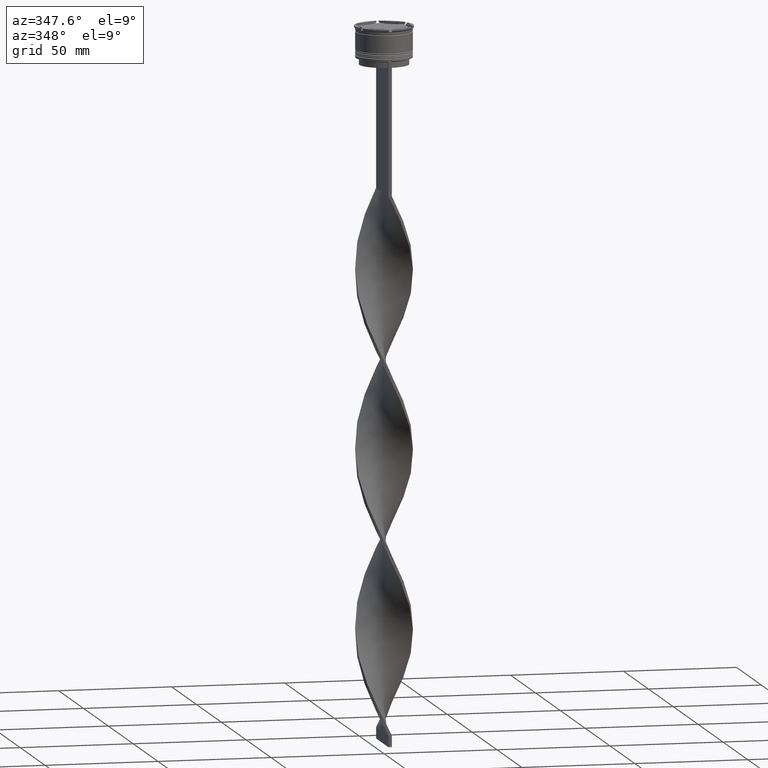
[diagram: clean part render]
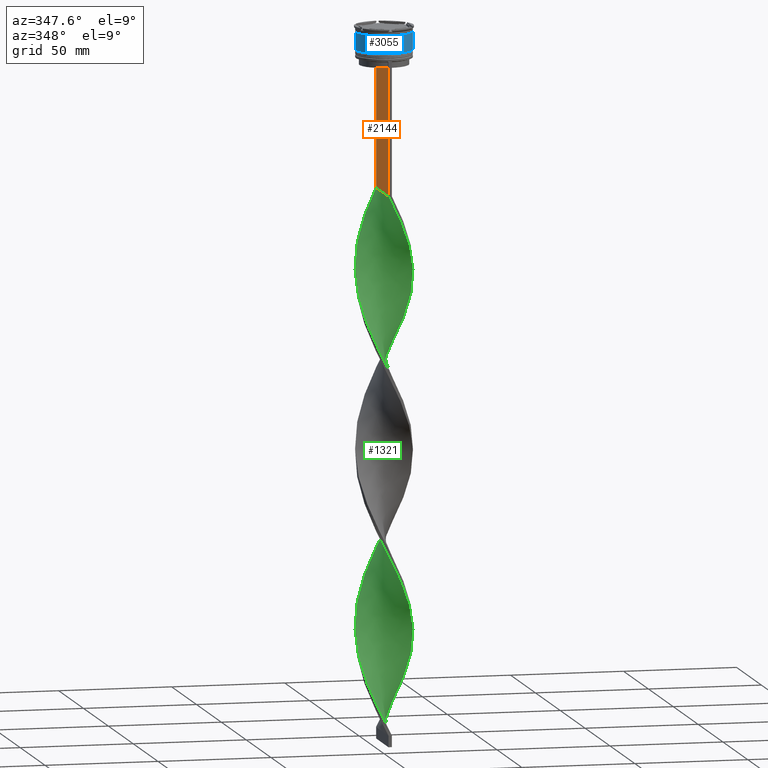
[diagram: same view with three faces highlighted in distinct colors, each labeled with its STEP entity id]
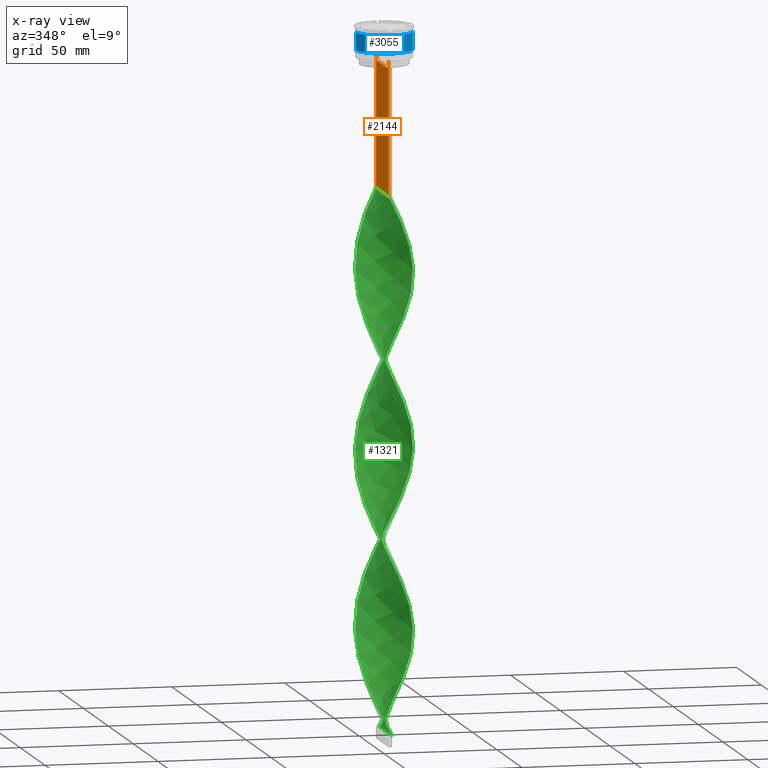
[diagram: x-ray of the same camera — body ghosted, the three highlighted faces saturated]
A machine part, auxiliary view with three faces highlighted in distinct colors.
The next image is the same camera in x-ray (body ghosted, the three faces saturated) — at least one of them is partly hidden behind the body in this view.
Their STEP definitions:

[orange] entity #2144 — the highlighted planar face has unit normal (-1, 0, 0).
#65 = CARTESIAN_POINT ( 'NONE',  ( -0.7499999999999997780, -12.50000000000000000, -14.00000000000000178 ) ) ;
#99 = CARTESIAN_POINT ( 'NONE',  ( -0.7499999999999997780, -10.87416663473574374, 0.000000000000000000 ) ) ;
#120 = LINE ( 'NONE', #487, #4478 ) ;
#146 = VERTEX_POINT ( 'NONE', #2805 ) ;
#213 = CARTESIAN_POINT ( 'NONE',  ( -0.7499999999999997780, 10.87416663473574374, 0.000000000000000000 ) ) ;
#257 = CARTESIAN_POINT ( 'NONE',  ( -0.7499999999999997780, -12.50000000000000000, 11.04495957273638673 ) ) ;
#299 = ORIENTED_EDGE ( 'NONE', *, *, #2715, .F. ) ;
#422 = LINE ( 'NONE', #2828, #452 ) ;
#447 = CARTESIAN_POINT ( 'NONE',  ( -0.7499999999999997780, -11.37530219378809093, -14.00000000000000178 ) ) ;
#452 = VECTOR ( 'NONE', #2116, 1000.000000000000000 ) ;
#464 = DIRECTION ( 'NONE',  ( 0.000000000000000000, -1.000000000000000000, 0.000000000000000000 ) ) ;
#487 = CARTESIAN_POINT ( 'NONE',  ( -0.7499999999999997780, 12.50000000000000000, 11.04495957273638673 ) ) ;
#490 = EDGE_CURVE ( 'NONE', #3111, #3920, #1784, .T. ) ;
#567 = CARTESIAN_POINT ( 'NONE',  ( -0.7499999999999997780, 11.37530219378809093, -14.00000000000000178 ) ) ;
#725 = VERTEX_POINT ( 'NONE', #3302 ) ;
#744 = VERTEX_POINT ( 'NONE', #1552 ) ;
#771 = DIRECTION ( 'NONE',  ( 0.000000000000000000, -1.000000000000000000, 0.000000000000000000 ) ) ;
#773 = EDGE_CURVE ( 'NONE', #2054, #2304, #2704, .T. ) ;
#776 = CARTESIAN_POINT ( 'NONE',  ( -0.7499999999999997780, 12.50000000000000000, -14.00000000000000178 ) ) ;
#788 = VERTEX_POINT ( 'NONE', #4290 ) ;
#794 = CARTESIAN_POINT ( 'NONE',  ( -0.7499999999999997780, -11.04122051801870619, -14.33334204001847745 ) ) ;
#824 = ORIENTED_EDGE ( 'NONE', *, *, #2197, .F. ) ;
#830 = LINE ( 'NONE', #2548, #4400 ) ;
#885 = CARTESIAN_POINT ( 'NONE',  ( -0.7499999999999997780, -11.20826532207830439, -14.16667499063191471 ) ) ;
#1012 = EDGE_CURVE ( 'NONE', #2304, #2761, #830, .T. ) ;
#1042 = VECTOR ( 'NONE', #3097, 1000.000000000000000 ) ;
#1056 = VECTOR ( 'NONE', #771, 1000.000000000000000 ) ;
#1234 = ORIENTED_EDGE ( 'NONE', *, *, #2709, .F. ) ;
#1260 = CARTESIAN_POINT ( 'NONE',  ( -0.7499999999999997780, -12.50000000000000000, -14.00000000000000178 ) ) ;
#1291 = EDGE_CURVE ( 'NONE', #3111, #744, #120, .T. ) ;
#1293 = LINE ( 'NONE', #4053, #3871 ) ;
#1326 = PLANE ( 'NONE',  #4328 ) ;
#1333 = CARTESIAN_POINT ( 'NONE',  ( -0.7499999999999997780, 12.37729776647553059, -14.00000000000000178 ) ) ;
#1552 = CARTESIAN_POINT ( 'NONE',  ( -0.7499999999999997780, 12.50000000000000000, -73.00000000000001421 ) ) ;
#1606 = VERTEX_POINT ( 'NONE', #3324 ) ;
#1615 = CARTESIAN_POINT ( 'NONE',  ( -0.7499999999999997780, 11.04122051153452055, -14.33334204648729582 ) ) ;
#1618 = LINE ( 'NONE', #1260, #2881 ) ;
#1646 = CARTESIAN_POINT ( 'NONE',  ( -0.7499999999999997780, -11.37530219378809093, -14.00000000000000178 ) ) ;
#1667 = ORIENTED_EDGE ( 'NONE', *, *, #3210, .F. ) ;
#1784 = LINE ( 'NONE', #65, #1056 ) ;
#1816 = DIRECTION ( 'NONE',  ( 0.000000000000000000, 0.000000000000000000, -1.000000000000000000 ) ) ;
#1860 = DIRECTION ( 'NONE',  ( 0.000000000000000000, 0.000000000000000000, -1.000000000000000000 ) ) ;
#1895 = CARTESIAN_POINT ( 'NONE',  ( -0.7499999999999997780, 10.87416663473574374, -14.50000000000000000 ) ) ;
#2053 = VECTOR ( 'NONE', #1860, 1000.000000000000000 ) ;
#2054 = VERTEX_POINT ( 'NONE', #2848 ) ;
#2116 = DIRECTION ( 'NONE',  ( 0.000000000000000000, 1.000000000000000000, 0.000000000000000000 ) ) ;
#2144 = ADVANCED_FACE ( 'NONE', ( #4085 ), #1326, .T. ) ;
#2146 = LINE ( 'NONE', #99, #2733 ) ;
#2197 = EDGE_CURVE ( 'NONE', #146, #2054, #2146, .T. ) ;
#2261 = DIRECTION ( 'NONE',  ( 0.000000000000000000, -1.000000000000000000, 0.000000000000000000 ) ) ;
#2304 = VERTEX_POINT ( 'NONE', #1646 ) ;
#2320 = CARTESIAN_POINT ( 'NONE',  ( -0.7499999999999997780, 10.87416663473574374, -14.50000000000000000 ) ) ;
#2327 = DIRECTION ( 'NONE',  ( 0.000000000000000000, 0.000000000000000000, 1.000000000000000000 ) ) ;
#2384 = EDGE_CURVE ( 'NONE', #3720, #2989, #3649, .T. ) ;
#2534 = CARTESIAN_POINT ( 'NONE',  ( -0.7499999999999997780, 11.37530219378809093, -14.00000000000000178 ) ) ;
#2548 = CARTESIAN_POINT ( 'NONE',  ( -0.7499999999999997780, -12.50000000000000000, -14.00000000000000178 ) ) ;
#2642 = CARTESIAN_POINT ( 'NONE',  ( -0.7499999999999997780, -12.50000000000000000, 11.04495957273638673 ) ) ;
#2680 = DIRECTION ( 'NONE',  ( 0.000000000000000000, -1.000000000000000000, 0.000000000000000000 ) ) ;
#2692 = EDGE_LOOP ( 'NONE', ( #4451, #4012, #3925, #3862, #1234, #2770, #1667, #3507, #4232, #824, #3183, #299 ) ) ;
#2704 = B_SPLINE_CURVE_WITH_KNOTS ( 'NONE', 3,
 ( #2904, #794, #885, #447 ),
 .UNSPECIFIED., .F., .F.,
 ( 4, 4 ),
 ( 0.05009718908159448147, 0.05081156920313960323 ),
 .UNSPECIFIED. ) ;
#2709 = EDGE_CURVE ( 'NONE', #725, #744, #422, .T. ) ;
#2715 = EDGE_CURVE ( 'NONE', #2989, #788, #3535, .T. ) ;
#2733 = VECTOR ( 'NONE', #4285, 1000.000000000000000 ) ;
#2761 = VERTEX_POINT ( 'NONE', #3170 ) ;
#2770 = ORIENTED_EDGE ( 'NONE', *, *, #3072, .F. ) ;
#2805 = CARTESIAN_POINT ( 'NONE',  ( -0.7499999999999997780, -10.87416663473574019, -17.00000000000000000 ) ) ;
#2828 = CARTESIAN_POINT ( 'NONE',  ( -0.7499999999999997780, -12.50000000000000000, -73.00000000000001421 ) ) ;
#2848 = CARTESIAN_POINT ( 'NONE',  ( -0.7499999999999997780, -10.87416663473574374, -14.50000000000000000 ) ) ;
#2881 = VECTOR ( 'NONE', #2261, 1000.000000000000000 ) ;
#2904 = CARTESIAN_POINT ( 'NONE',  ( -0.7499999999999997780, -10.87416663473574374, -14.50000000000000000 ) ) ;
#2989 = VERTEX_POINT ( 'NONE', #2320 ) ;
#3009 = DIRECTION ( 'NONE',  ( -1.000000000000000000, 0.000000000000000000, 0.000000000000000000 ) ) ;
#3072 = EDGE_CURVE ( 'NONE', #1606, #725, #3376, .T. ) ;
#3097 = DIRECTION ( 'NONE',  ( 0.000000000000000000, 0.000000000000000000, -1.000000000000000000 ) ) ;
#3111 = VERTEX_POINT ( 'NONE', #776 ) ;
#3170 = CARTESIAN_POINT ( 'NONE',  ( -0.7499999999999997780, -12.37729776647553059, -14.00000000000000178 ) ) ;
#3183 = ORIENTED_EDGE ( 'NONE', *, *, #3757, .F. ) ;
#3210 = EDGE_CURVE ( 'NONE', #2761, #1606, #1293, .T. ) ;
#3302 = CARTESIAN_POINT ( 'NONE',  ( -0.7499999999999997780, -12.50000000000000000, -73.00000000000001421 ) ) ;
#3324 = CARTESIAN_POINT ( 'NONE',  ( -0.7499999999999997780, -12.50000000000000000, -14.00000000000000178 ) ) ;
#3329 = VECTOR ( 'NONE', #3954, 1000.000000000000000 ) ;
#3376 = LINE ( 'NONE', #257, #1042 ) ;
#3389 = CARTESIAN_POINT ( 'NONE',  ( -0.7499999999999997780, 11.20826531587977648, -14.16667499681701514 ) ) ;
#3507 = ORIENTED_EDGE ( 'NONE', *, *, #1012, .F. ) ;
#3535 = LINE ( 'NONE', #213, #2053 ) ;
#3588 = CARTESIAN_POINT ( 'NONE',  ( -0.7499999999999997780, 10.90000000000000213, -17.00000000000000000 ) ) ;
#3649 = B_SPLINE_CURVE_WITH_KNOTS ( 'NONE', 3,
 ( #567, #3389, #1615, #1895 ),
 .UNSPECIFIED., .F., .F.,
 ( 4, 4 ),
 ( 0.01936090553552769281, 0.02006881572333104116 ),
 .UNSPECIFIED. ) ;
#3720 = VERTEX_POINT ( 'NONE', #2534 ) ;
#3757 = EDGE_CURVE ( 'NONE', #788, #146, #3931, .T. ) ;
#3837 = EDGE_CURVE ( 'NONE', #3920, #3720, #1618, .T. ) ;
#3862 = ORIENTED_EDGE ( 'NONE', *, *, #1291, .T. ) ;
#3871 = VECTOR ( 'NONE', #2680, 1000.000000000000000 ) ;
#3920 = VERTEX_POINT ( 'NONE', #1333 ) ;
#3925 = ORIENTED_EDGE ( 'NONE', *, *, #490, .F. ) ;
#3931 = LINE ( 'NONE', #3588, #3329 ) ;
#3954 = DIRECTION ( 'NONE',  ( 0.000000000000000000, -1.000000000000000000, 0.000000000000000000 ) ) ;
#4012 = ORIENTED_EDGE ( 'NONE', *, *, #3837, .F. ) ;
#4053 = CARTESIAN_POINT ( 'NONE',  ( -0.7499999999999997780, -12.50000000000000000, -14.00000000000000178 ) ) ;
#4085 = FACE_OUTER_BOUND ( 'NONE', #2692, .T. ) ;
#4232 = ORIENTED_EDGE ( 'NONE', *, *, #773, .F. ) ;
#4285 = DIRECTION ( 'NONE',  ( -0.000000000000000000, -0.000000000000000000, 1.000000000000000000 ) ) ;
#4290 = CARTESIAN_POINT ( 'NONE',  ( -0.7499999999999997780, 10.87416663473574019, -17.00000000000000000 ) ) ;
#4328 = AXIS2_PLACEMENT_3D ( 'NONE', #2642, #3009, #2327 ) ;
#4400 = VECTOR ( 'NONE', #464, 1000.000000000000000 ) ;
#4451 = ORIENTED_EDGE ( 'NONE', *, *, #2384, .F. ) ;
#4478 = VECTOR ( 'NONE', #1816, 1000.000000000000000 ) ;

[blue] entity #3055 — the highlighted cylindrical surface (edge-blend (fillet) strip) has radius 12.5 mm, axis along (-0, -0, 1).
#20 = DIRECTION ( 'NONE',  ( 1.000000000000000000, 0.000000000000000000, 0.000000000000000000 ) ) ;
#55 = DIRECTION ( 'NONE',  ( 1.000000000000000000, 0.000000000000000000, 0.000000000000000000 ) ) ;
#67 = EDGE_CURVE ( 'NONE', #4345, #2274, #4177, .T. ) ;
#73 = CARTESIAN_POINT ( 'NONE',  ( 0.000000000000000000, 0.000000000000000000, -10.50000000000000178 ) ) ;
#305 = LINE ( 'NONE', #3031, #3373 ) ;
#323 = DIRECTION ( 'NONE',  ( -0.000000000000000000, -0.000000000000000000, 1.000000000000000000 ) ) ;
#603 = EDGE_LOOP ( 'NONE', ( #2251, #3231, #1161, #1813 ) ) ;
#608 = EDGE_CURVE ( 'NONE', #2931, #2869, #2073, .T. ) ;
#757 = VECTOR ( 'NONE', #4203, 1000.000000000000000 ) ;
#912 = DIRECTION ( 'NONE',  ( 1.000000000000000000, 0.000000000000000000, 0.000000000000000000 ) ) ;
#1161 = ORIENTED_EDGE ( 'NONE', *, *, #3337, .T. ) ;
#1271 = DIRECTION ( 'NONE',  ( -0.000000000000000000, -0.000000000000000000, 1.000000000000000000 ) ) ;
#1813 = ORIENTED_EDGE ( 'NONE', *, *, #608, .F. ) ;
#1980 = CARTESIAN_POINT ( 'NONE',  ( -12.49999999999999822, 1.530808498934191324E-15, -2.699999999999999289 ) ) ;
#2000 = AXIS2_PLACEMENT_3D ( 'NONE', #73, #2844, #55 ) ;
#2016 = CARTESIAN_POINT ( 'NONE',  ( -12.50000000000000355, 1.530808498934191916E-15, -10.50000000000000178 ) ) ;
#2073 = CIRCLE ( 'NONE', #2434, 12.49999999999999822 ) ;
#2125 = CARTESIAN_POINT ( 'NONE',  ( 12.50000000000000000, 0.000000000000000000, 0.000000000000000000 ) ) ;
#2251 = ORIENTED_EDGE ( 'NONE', *, *, #2997, .F. ) ;
#2274 = VERTEX_POINT ( 'NONE', #3928 ) ;
#2426 = LINE ( 'NONE', #2125, #757 ) ;
#2434 = AXIS2_PLACEMENT_3D ( 'NONE', #2795, #4184, #20 ) ;
#2795 = CARTESIAN_POINT ( 'NONE',  ( 0.000000000000000000, 0.000000000000000000, -2.699999999999999289 ) ) ;
#2844 = DIRECTION ( 'NONE',  ( -0.000000000000000000, -0.000000000000000000, 1.000000000000000000 ) ) ;
#2869 = VERTEX_POINT ( 'NONE', #3642 ) ;
#2931 = VERTEX_POINT ( 'NONE', #1980 ) ;
#2997 = EDGE_CURVE ( 'NONE', #4345, #2931, #305, .T. ) ;
#3031 = CARTESIAN_POINT ( 'NONE',  ( -12.50000000000000000, 1.530808498934191521E-15, 0.000000000000000000 ) ) ;
#3055 = ADVANCED_FACE ( 'NONE', ( #3447 ), #4417, .T. ) ;
#3231 = ORIENTED_EDGE ( 'NONE', *, *, #67, .T. ) ;
#3337 = EDGE_CURVE ( 'NONE', #2274, #2869, #2426, .T. ) ;
#3373 = VECTOR ( 'NONE', #1271, 1000.000000000000000 ) ;
#3403 = CARTESIAN_POINT ( 'NONE',  ( 0.000000000000000000, 0.000000000000000000, 0.000000000000000000 ) ) ;
#3447 = FACE_OUTER_BOUND ( 'NONE', #603, .T. ) ;
#3642 = CARTESIAN_POINT ( 'NONE',  ( 12.49999999999999822, 0.000000000000000000, -2.699999999999999289 ) ) ;
#3928 = CARTESIAN_POINT ( 'NONE',  ( 12.50000000000000178, 0.000000000000000000, -10.50000000000000178 ) ) ;
#4021 = AXIS2_PLACEMENT_3D ( 'NONE', #3403, #323, #912 ) ;
#4177 = CIRCLE ( 'NONE', #2000, 12.50000000000000178 ) ;
#4184 = DIRECTION ( 'NONE',  ( -0.000000000000000000, -0.000000000000000000, 1.000000000000000000 ) ) ;
#4203 = DIRECTION ( 'NONE',  ( -0.000000000000000000, -0.000000000000000000, 1.000000000000000000 ) ) ;
#4345 = VERTEX_POINT ( 'NONE', #2016 ) ;
#4417 = CYLINDRICAL_SURFACE ( 'NONE', #4021, 12.50000000000000000 ) ;

[green] entity #1321 — the highlighted face is a freeform B-spline surface patch.
#6 = CARTESIAN_POINT ( 'NONE',  ( 10.55355136890619860, 6.740552907874702626, -285.3999999999999773 ) ) ;
#12 = CARTESIAN_POINT ( 'NONE',  ( 3.149420042465477465, -12.11996919947063134, -80.86666666666667425 ) ) ;
#14 = CARTESIAN_POINT ( 'NONE',  ( 12.46343010621939307, -1.214664557556534907, -187.0666666666666629 ) ) ;
#26 = CARTESIAN_POINT ( 'NONE',  ( -8.715271351328697236, 9.045873944214960716, -90.70000000000001705 ) ) ;
#33 = CARTESIAN_POINT ( 'NONE',  ( -2.696197068449239342, 12.22877840865904986, -234.2666666666666515 ) ) ;
#53 = CARTESIAN_POINT ( 'NONE',  ( 12.50000000000000000, -0.7500000000000005551, -269.6666666666666856 ) ) ;
#59 = CARTESIAN_POINT ( 'NONE',  ( 11.65644370790820794, -4.576004816908208817, -104.4666666666666828 ) ) ;
#60 = CARTESIAN_POINT ( 'NONE',  ( -3.658622801590747819, 12.01658309743656083, -236.2333333333333485 ) ) ;
#71 = CARTESIAN_POINT ( 'NONE',  ( -9.671873490467490342, -7.954078399437124247, -128.0666666666666629 ) ) ;
#75 = CARTESIAN_POINT ( 'NONE',  ( 12.11996919947063311, 3.149420042465477021, -120.2000000000000028 ) ) ;
#88 = CARTESIAN_POINT ( 'NONE',  ( 12.22877840865904986, 2.696197068449236678, -194.9333333333333371 ) ) ;
#96 = CARTESIAN_POINT ( 'NONE',  ( 10.02305835011481427, 7.571135413668910630, -130.0333333333333314 ) ) ;
#113 = CARTESIAN_POINT ( 'NONE',  ( -12.55902628011846645, 0.2337713353077317258, -110.3666666666666600 ) ) ;
#122 = CARTESIAN_POINT ( 'NONE',  ( 4.576004816908209705, 11.65644370790820794, -143.7999999999999829 ) ) ;
#138 = CARTESIAN_POINT ( 'NONE',  ( 5.909970402080495511, 11.08404438769758293, -216.5666666666666629 ) ) ;
#143 = CARTESIAN_POINT ( 'NONE',  ( 9.369164850721755755, 8.308504678941933008, -132.0000000000000000 ) ) ;
#160 = CARTESIAN_POINT ( 'NONE',  ( -11.65644370790820972, -4.576004816908207040, -120.2000000000000028 ) ) ;
#166 = CARTESIAN_POINT ( 'NONE',  ( -7.192885447545552147, -10.29787303672002352, -216.5666666666666629 ) ) ;
#191 = CARTESIAN_POINT ( 'NONE',  ( 1.214664557556532909, -12.46343010621939484, -76.93333333333333712 ) ) ;
#192 = CARTESIAN_POINT ( 'NONE',  ( -11.29630431837985505, 5.493386832225676031, -181.1666666666666856 ) ) ;
#205 = CARTESIAN_POINT ( 'NONE',  ( -0.7499999999999997780, 12.50000000000000000, -73.00000000000001421 ) ) ;
#214 = CARTESIAN_POINT ( 'NONE',  ( -12.46343010621939484, 1.214664557556533353, -265.7333333333333485 ) ) ;
#219 = CARTESIAN_POINT ( 'NONE',  ( 5.493386832225669814, 11.29630431837985682, -141.8333333333333144 ) ) ;
#220 = CARTESIAN_POINT ( 'NONE',  ( 11.87210446662093588, 4.103282305125621754, -279.4999999999999432 ) ) ;
#230 = CARTESIAN_POINT ( 'NONE',  ( -12.01658309743656261, -3.658622801590747819, -118.2333333333333485 ) ) ;
#233 = CARTESIAN_POINT ( 'NONE',  ( 0.7499999999999983347, -12.50000000000000000, -309.0000000000000000 ) ) ;
#240 = CARTESIAN_POINT ( 'NONE',  ( -12.46343010621939484, -1.214664557556530244, -194.9333333333333371 ) ) ;
#258 = CARTESIAN_POINT ( 'NONE',  ( -11.65644370790820972, -4.576004816908207040, -277.5333333333333030 ) ) ;
#262 = CARTESIAN_POINT ( 'NONE',  ( 10.02305835011481427, 7.571135413668909742, -130.0333333333333314 ) ) ;
#263 = CARTESIAN_POINT ( 'NONE',  ( 10.02305835011481427, 7.571135413668910630, -287.3666666666667311 ) ) ;
#287 = CARTESIAN_POINT ( 'NONE',  ( -12.01658309743656261, -3.658622801590747819, -275.5666666666666060 ) ) ;
#290 = CARTESIAN_POINT ( 'NONE',  ( 10.79708867754993840, -6.343136139885610980, -100.5333333333333314 ) ) ;
#291 = CARTESIAN_POINT ( 'NONE',  ( 5.493386832225669814, 11.29630431837985682, -299.1666666666666856 ) ) ;
#308 = CARTESIAN_POINT ( 'NONE',  ( 8.308504678941934785, -9.369164850721755755, -92.66666666666667140 ) ) ;
#316 = CARTESIAN_POINT ( 'NONE',  ( 2.696197068449237566, -12.22877840865904986, -155.6000000000000227 ) ) ;
#329 = CARTESIAN_POINT ( 'NONE',  ( 12.11996919947063311, 3.149420042465477021, -277.5333333333333030 ) ) ;
#340 = CARTESIAN_POINT ( 'NONE',  ( 8.715271351328699012, -9.045873944214962492, -169.3666666666667027 ) ) ;
#355 = CARTESIAN_POINT ( 'NONE',  ( -7.954078399437126912, -9.671873490467486789, -214.5999999999999943 ) ) ;
#361 = CARTESIAN_POINT ( 'NONE',  ( 6.740552907874703514, -10.55355136890619860, -88.73333333333334849 ) ) ;
#363 = CARTESIAN_POINT ( 'NONE',  ( -11.08404438769758116, 5.909970402080499952, -255.9000000000000625 ) ) ;
#373 = CARTESIAN_POINT ( 'NONE',  ( -2.696197068449239342, 12.22877840865904986, -76.93333333333333712 ) ) ;
#382 = CARTESIAN_POINT ( 'NONE',  ( 6.740552907874707067, 10.55355136890619860, -214.5999999999999943 ) ) ;
#394 = CARTESIAN_POINT ( 'NONE',  ( -3.658622801590746043, -12.01658309743656261, -224.4333333333333655 ) ) ;
#401 = CARTESIAN_POINT ( 'NONE',  ( 11.65644370790820972, 4.576004816908206152, -198.8666666666666742 ) ) ;
#418 = CARTESIAN_POINT ( 'NONE',  ( 2.696197068449237566, -12.22877840865904986, -155.6000000000000227 ) ) ;
#421 =( BOUNDED_CURVE ( )  B_SPLINE_CURVE ( 2, ( #205, #999, #4452, #3734, #1621, #4093, #975, #2698, #2021, #4432, #1673, #903, #1576, #3067, #1242, #3685, #3711, #1335, #933, #1652, #2380, #4407, #599, #230, #4023, #1923, #953, #2335, #3326, #619, #2287, #574, #1601, #1952, #2998, #4385, #1262, #4047, #3371, #1290, #3046, #1313, #316, #1084, #3114, #1062, #3845, #2814, #2085, #340, #1719, #4199, #727, #662, #2104, #1693, #2122, #3499, #14, #702, #3518, #2467, #4138, #1741, #401, #1376, #1395, #3861, #4220, #1776, #2790, #4158, #382, #1043, #1758, #743, #3482, #4501, #2769, #3176, #3151, #2448, #33, #60, #1416, #2423, #3822, #4176, #2486, #1443, #1018, #3132, #2832, #363, #1102, #2038, #3441, #3088, #4476, #1357, #2748, #2401, #3802, #682, #2060, #3461, #789, #426, #3950, #1121, #4283, #2850, #2236, #4239, #1502, #2186, #3926, #3629, #441, #1800, #1215 ),
 .UNSPECIFIED., .F., .T. ) 
 B_SPLINE_CURVE_WITH_KNOTS ( ( 3, 2, 2, 2, 2, 2, 2, 2, 2, 2, 2, 2, 2, 2, 2, 2, 2, 2, 2, 2, 2, 2, 2, 2, 2, 2, 2, 2, 2, 2, 2, 2, 2, 2, 2, 2, 2, 2, 2, 2, 2, 2, 2, 2, 2, 2, 2, 2, 2, 2, 2, 2, 2, 2, 2, 2, 2, 2, 2, 2, 3 ),
 ( 0.000000000000000000, 0.01250000000000000243, 0.02500000000000000486, 0.03749999999999999861, 0.05000000000000000971, 0.06250000000000000000, 0.07499999999999999722, 0.08749999999999998057, 0.1000000000000000194, 0.1125000000000000028, 0.1250000000000000000, 0.1375000000000000111, 0.1499999999999999944, 0.1625000000000000056, 0.1749999999999999611, 0.1875000000000000000, 0.2000000000000000389, 0.2124999999999999944, 0.2250000000000000056, 0.2374999999999999611, 0.2500000000000000000, 0.2625000000000000111, 0.2750000000000000222, 0.2874999999999999778, 0.2999999999999999889, 0.3125000000000000000, 0.3250000000000000111, 0.3375000000000000777, 0.3499999999999999223, 0.3624999999999999889, 0.3750000000000000000, 0.3875000000000000111, 0.4000000000000000777, 0.4124999999999999223, 0.4249999999999999889, 0.4375000000000000000, 0.4500000000000000111, 0.4625000000000000777, 0.4749999999999999223, 0.4874999999999999889, 0.5000000000000000000, 0.5124999999999999556, 0.5250000000000000222, 0.5374999999999999778, 0.5500000000000000444, 0.5625000000000000000, 0.5749999999999999556, 0.5875000000000000222, 0.5999999999999999778, 0.6125000000000000444, 0.6250000000000000000, 0.6374999999999999556, 0.6500000000000000222, 0.6624999999999999778, 0.6750000000000001554, 0.6875000000000000000, 0.6999999999999998446, 0.7125000000000000222, 0.7249999999999999778, 0.7375000000000001554, 0.7500000000000000000 ),
 .UNSPECIFIED. ) 
 CURVE ( )  GEOMETRIC_REPRESENTATION_ITEM ( )  RATIONAL_B_SPLINE_CURVE ( ( 1.000000000000000000, 0.9969173337331279638, 1.000000000000000000, 0.9969173337331279638, 1.000000000000000000, 0.9969173337331279638, 1.000000000000000000, 0.9969173337331279638, 1.000000000000000000, 0.9969173337331279638, 1.000000000000000000, 0.9969173337331279638, 1.000000000000000000, 0.9969173337331279638, 1.000000000000000000, 0.9969173337331279638, 1.000000000000000000, 0.9969173337331279638, 1.000000000000000000, 0.9969173337331279638, 1.000000000000000000, 0.9969173337331279638, 1.000000000000000000, 0.9969173337331279638, 1.000000000000000000, 0.9969173337331279638, 1.000000000000000000, 0.9969173337331279638, 1.000000000000000000, 0.9969173337331279638, 1.000000000000000000, 0.9969173337331279638, 1.000000000000000000, 0.9969173337331279638, 1.000000000000000000, 0.9969173337331279638, 1.000000000000000000, 0.9969173337331279638, 1.000000000000000000, 0.9969173337331279638, 1.000000000000000000, 0.9969173337331279638, 1.000000000000000000, 0.9969173337331279638, 1.000000000000000000, 0.9969173337331279638, 1.000000000000000000, 0.9969173337331279638, 1.000000000000000000, 0.9969173337331279638, 1.000000000000000000, 0.9969173337331279638, 1.000000000000000000, 0.9969173337331279638, 1.000000000000000000, 0.9969173337331279638, 1.000000000000000000, 0.9969173337331279638, 1.000000000000000000, 0.9969173337331279638, 1.000000000000000000, 0.9969173337331279638, 1.000000000000000000, 0.9969173337331279638, 1.000000000000000000, 0.9969173337331279638, 1.000000000000000000, 0.9969173337331279638, 1.000000000000000000, 0.9969173337331279638, 1.000000000000000000, 0.9969173337331279638, 1.000000000000000000, 0.9969173337331279638, 1.000000000000000000, 0.9969173337331279638, 1.000000000000000000, 0.9969173337331279638, 1.000000000000000000, 0.9969173337331279638, 1.000000000000000000, 0.9969173337331279638, 1.000000000000000000, 0.9969173337331279638, 1.000000000000000000, 0.9969173337331279638, 1.000000000000000000, 0.9969173337331279638, 1.000000000000000000, 0.9969173337331279638, 1.000000000000000000, 0.9969173337331279638, 1.000000000000000000, 0.9969173337331279638, 1.000000000000000000, 0.9969173337331279638, 1.000000000000000000, 0.9969173337331279638, 1.000000000000000000, 0.9969173337331279638, 1.000000000000000000, 0.9969173337331279638, 1.000000000000000000, 0.9969173337331279638, 1.000000000000000000, 0.9969173337331279638, 1.000000000000000000, 0.9969173337331279638, 1.000000000000000000, 0.9969173337331279638, 1.000000000000000000, 0.9969173337331279638, 1.000000000000000000, 0.9969173337331279638, 1.000000000000000000, 0.9969173337331279638, 1.000000000000000000, 0.9969173337331279638, 1.000000000000000000, 0.9969173337331279638, 1.000000000000000000 ) ) 
 REPRESENTATION_ITEM ( '' )  );
#422 = LINE ( 'NONE', #2828, #452 ) ;
#425 = CARTESIAN_POINT ( 'NONE',  ( 12.55902628011846645, 0.2337713353077299772, -114.3000000000000256 ) ) ;
#426 = CARTESIAN_POINT ( 'NONE',  ( -10.29787303672002352, -7.192885447545553923, -283.4333333333333940 ) ) ;
#437 = CARTESIAN_POINT ( 'NONE',  ( 12.44097371988153711, 1.733771335307733974, -192.9666666666666970 ) ) ;
#441 = CARTESIAN_POINT ( 'NONE',  ( -1.214664557556534463, -12.46343010621939307, -305.0666666666666629 ) ) ;
#452 = VECTOR ( 'NONE', #2116, 1000.000000000000000 ) ;
#455 = CARTESIAN_POINT ( 'NONE',  ( -11.87210446662093588, 4.103282305125623530, -102.5000000000000000 ) ) ;
#462 = CARTESIAN_POINT ( 'NONE',  ( 5.909970402080498175, -11.08404438769758293, -244.0999999999999943 ) ) ;
#480 = CARTESIAN_POINT ( 'NONE',  ( -11.08404438769758116, 5.909970402080499063, -98.56666666666669130 ) ) ;
#488 = CARTESIAN_POINT ( 'NONE',  ( -4.576004816908211481, -11.65644370790820794, -222.4666666666666686 ) ) ;
#505 = CARTESIAN_POINT ( 'NONE',  ( -7.571135413668911518, -10.02305835011481605, -133.9666666666666686 ) ) ;
#509 = CARTESIAN_POINT ( 'NONE',  ( -7.954078399437126912, -9.671873490467486789, -214.5999999999999943 ) ) ;
#529 = CARTESIAN_POINT ( 'NONE',  ( -9.671873490467490342, -7.954078399437124247, -285.3999999999999773 ) ) ;
#533 = CARTESIAN_POINT ( 'NONE',  ( -0.7499999999999997780, -12.50000000000000000, -73.00000000000001421 ) ) ;
#534 = CARTESIAN_POINT ( 'NONE',  ( -2.195557779805333620, 12.36783393232032680, -157.5666666666666913 ) ) ;
#560 = CARTESIAN_POINT ( 'NONE',  ( 12.11996919947063311, 3.149420042465477021, -120.2000000000000028 ) ) ;
#574 = CARTESIAN_POINT ( 'NONE',  ( -7.571135413668912406, -10.02305835011481605, -133.9666666666666686 ) ) ;
#584 = CARTESIAN_POINT ( 'NONE',  ( -3.149420042465479241, -12.11996919947063134, -301.1333333333333258 ) ) ;
#590 = CARTESIAN_POINT ( 'NONE',  ( -8.308504678941933008, 9.369164850721755755, -171.3333333333333428 ) ) ;
#591 = CARTESIAN_POINT ( 'NONE',  ( 12.46343010621939484, 1.214664557556532021, -273.5999999999999659 ) ) ;
#599 = CARTESIAN_POINT ( 'NONE',  ( -12.22877840865904986, -2.696197068449238454, -116.2666666666666657 ) ) ;
#605 = CARTESIAN_POINT ( 'NONE',  ( 0.7499999999999983347, -12.50000000000000000, -309.0000000000000000 ) ) ;
#609 = CARTESIAN_POINT ( 'NONE',  ( 0.7500000000000013323, 12.50000000000000000, -151.6666666666666856 ) ) ;
#610 = CARTESIAN_POINT ( 'NONE',  ( 9.369164850721755755, 8.308504678941933008, -289.3333333333333144 ) ) ;
#619 = CARTESIAN_POINT ( 'NONE',  ( -9.045873944214960716, -8.715271351328697236, -130.0333333333333314 ) ) ;
#626 = CARTESIAN_POINT ( 'NONE',  ( -10.55355136890619860, 6.740552907874703514, -253.9333333333333371 ) ) ;
#630 = CARTESIAN_POINT ( 'NONE',  ( 12.01658309743656083, -3.658622801590749596, -106.4333333333333513 ) ) ;
#631 = CARTESIAN_POINT ( 'NONE',  ( 12.01658309743656083, -3.658622801590749152, -263.7666666666667084 ) ) ;
#653 = CARTESIAN_POINT ( 'NONE',  ( 12.36783393232032680, 2.195557779805334508, -118.2333333333333343 ) ) ;
#662 = CARTESIAN_POINT ( 'NONE',  ( 11.08404438769758471, -5.909970402080495511, -177.2333333333333485 ) ) ;
#675 = CARTESIAN_POINT ( 'NONE',  ( -1.733771335307739303, -12.44097371988153533, -228.3666666666666458 ) ) ;
#682 = CARTESIAN_POINT ( 'NONE',  ( -12.01658309743656261, -3.658622801590747819, -275.5666666666666060 ) ) ;
#694 = CARTESIAN_POINT ( 'NONE',  ( 12.22877840865904986, -2.696197068449239787, -265.7333333333333485 ) ) ;
#702 = CARTESIAN_POINT ( 'NONE',  ( 12.55902628011846822, -0.2337713353077386647, -189.0333333333333314 ) ) ;
#719 = CARTESIAN_POINT ( 'NONE',  ( -7.192885447545554811, 10.29787303672002530, -86.76666666666666572 ) ) ;
#725 = VERTEX_POINT ( 'NONE', #3302 ) ;
#727 = CARTESIAN_POINT ( 'NONE',  ( 10.55355136890619683, -6.740552907874705291, -175.2666666666666799 ) ) ;
#735 = CARTESIAN_POINT ( 'NONE',  ( 5.006626353603059520, -11.47807442715926030, -242.1333333333333258 ) ) ;
#741 = CARTESIAN_POINT ( 'NONE',  ( 10.29787303672002174, -7.192885447545555699, -98.56666666666669130 ) ) ;
#743 = CARTESIAN_POINT ( 'NONE',  ( 4.103282305125630636, 11.87210446662093410, -220.5000000000000284 ) ) ;
#744 = VERTEX_POINT ( 'NONE', #1552 ) ;
#756 = CARTESIAN_POINT ( 'NONE',  ( 12.55902628011846645, 0.2337713353077299772, -271.6333333333332689 ) ) ;
#783 = CARTESIAN_POINT ( 'NONE',  ( -1.214664557556534463, -12.46343010621939307, -147.7333333333333201 ) ) ;
#787 = CARTESIAN_POINT ( 'NONE',  ( 12.44097371988153711, -1.733771335307731531, -110.3666666666666742 ) ) ;
#789 = CARTESIAN_POINT ( 'NONE',  ( -10.79708867754994017, -6.343136139885610092, -281.4666666666666401 ) ) ;
#802 = CARTESIAN_POINT ( 'NONE',  ( -12.46343010621939484, 1.214664557556533353, -108.3999999999999915 ) ) ;
#807 = CARTESIAN_POINT ( 'NONE',  ( 2.195557779805334953, -12.36783393232032502, -236.2333333333333485 ) ) ;
#823 = CARTESIAN_POINT ( 'NONE',  ( 11.47807442715925852, -5.006626353603061297, -179.1999999999999886 ) ) ;
#828 = CARTESIAN_POINT ( 'NONE',  ( -10.55355136890619860, -6.740552907874700850, -206.7333333333333201 ) ) ;
#848 = CARTESIAN_POINT ( 'NONE',  ( 6.343136139885608316, -10.79708867754994017, -163.4666666666666401 ) ) ;
#855 = CARTESIAN_POINT ( 'NONE',  ( -10.29787303672002530, 7.192885447545551258, -177.2333333333333485 ) ) ;
#871 = CARTESIAN_POINT ( 'NONE',  ( 9.369164850721753979, -8.308504678941934785, -171.3333333333333428 ) ) ;
#876 = CARTESIAN_POINT ( 'NONE',  ( 7.954078399437126023, 9.671873490467488566, -135.9333333333333371 ) ) ;
#890 = CARTESIAN_POINT ( 'NONE',  ( -2.696197068449239342, 12.22877840865904986, -234.2666666666666515 ) ) ;
#894 = CARTESIAN_POINT ( 'NONE',  ( -4.103282305125620866, 11.87210446662093766, -161.5000000000000000 ) ) ;
#895 = CARTESIAN_POINT ( 'NONE',  ( -2.696197068449242007, -12.22877840865904808, -226.3999999999999773 ) ) ;
#903 = CARTESIAN_POINT ( 'NONE',  ( -10.02305835011481427, 7.571135413668910630, -94.63333333333335418 ) ) ;
#904 = EDGE_CURVE ( 'NONE', #744, #3204, #421, .T. ) ;
#913 = CARTESIAN_POINT ( 'NONE',  ( -10.29787303672002530, -7.192885447545554811, -283.4333333333333940 ) ) ;
#920 = CARTESIAN_POINT ( 'NONE',  ( -3.149420042465476133, 12.11996919947063311, -159.5333333333333314 ) ) ;
#921 = CARTESIAN_POINT ( 'NONE',  ( 3.658622801590749152, 12.01658309743656083, -303.0999999999999659 ) ) ;
#933 = CARTESIAN_POINT ( 'NONE',  ( -12.46343010621939484, 1.214664557556533353, -108.3999999999999915 ) ) ;
#944 = CARTESIAN_POINT ( 'NONE',  ( 12.44097371988153711, -1.733771335307731531, -110.3666666666666600 ) ) ;
#945 = CARTESIAN_POINT ( 'NONE',  ( 7.954078399437126023, 9.671873490467488566, -293.2666666666666515 ) ) ;
#953 = CARTESIAN_POINT ( 'NONE',  ( -10.79708867754994017, -6.343136139885610092, -124.1333333333333400 ) ) ;
#961 = CARTESIAN_POINT ( 'NONE',  ( 2.195557779805333176, 12.36783393232032680, -224.4333333333333655 ) ) ;
#965 = CARTESIAN_POINT ( 'NONE',  ( -11.47807442715926030, -5.006626353603056856, -202.8000000000000114 ) ) ;
#966 = CARTESIAN_POINT ( 'NONE',  ( 12.44097371988153711, -1.733771335307731531, -267.6999999999999318 ) ) ;
#975 = CARTESIAN_POINT ( 'NONE',  ( -6.343136139885610092, 10.79708867754994017, -84.80000000000001137 ) ) ;
#986 = CARTESIAN_POINT ( 'NONE',  ( -5.909970402080495511, 11.08404438769758293, -165.4333333333333655 ) ) ;
#999 = CARTESIAN_POINT ( 'NONE',  ( -1.733771335307730643, 12.44097371988153711, -74.96666666666668277 ) ) ;
#1009 = CARTESIAN_POINT ( 'NONE',  ( 10.79708867754993840, -6.343136139885610980, -257.8666666666666742 ) ) ;
#1010 = CARTESIAN_POINT ( 'NONE',  ( 12.36783393232032680, 2.195557779805334508, -275.5666666666666060 ) ) ;
#1018 = CARTESIAN_POINT ( 'NONE',  ( -9.369164850721755755, 8.308504678941934785, -250.0000000000000000 ) ) ;
#1031 = CARTESIAN_POINT ( 'NONE',  ( -0.7499999999999997780, 12.50000000000000000, -73.00000000000001421 ) ) ;
#1043 = CARTESIAN_POINT ( 'NONE',  ( 5.909970402080496399, 11.08404438769758293, -216.5666666666666629 ) ) ;
#1054 = CARTESIAN_POINT ( 'NONE',  ( 5.493386832225669814, 11.29630431837985682, -299.1666666666666856 ) ) ;
#1062 = CARTESIAN_POINT ( 'NONE',  ( 5.493386832225667149, -11.29630431837985860, -161.5000000000000000 ) ) ;
#1077 = CARTESIAN_POINT ( 'NONE',  ( 3.658622801590749596, 12.01658309743656083, -303.0999999999999659 ) ) ;
#1084 = CARTESIAN_POINT ( 'NONE',  ( 3.658622801590746931, -12.01658309743656261, -157.5666666666666913 ) ) ;
#1095 = CARTESIAN_POINT ( 'NONE',  ( 12.01658309743656083, -3.658622801590749596, -263.7666666666667652 ) ) ;
#1102 = CARTESIAN_POINT ( 'NONE',  ( -11.47807442715925852, 5.006626353603060409, -257.8666666666666742 ) ) ;
#1113 = CARTESIAN_POINT ( 'NONE',  ( 7.192885447545553035, -10.29787303672002530, -165.4333333333333655 ) ) ;
#1121 = CARTESIAN_POINT ( 'NONE',  ( -9.045873944214960716, -8.715271351328697236, -287.3666666666667311 ) ) ;
#1139 = CARTESIAN_POINT ( 'NONE',  ( 10.29787303672002885, 7.192885447545549482, -204.7666666666666799 ) ) ;
#1145 = CARTESIAN_POINT ( 'NONE',  ( -10.02305835011481427, -7.571135413668915071, -208.7000000000000171 ) ) ;
#1160 = CARTESIAN_POINT ( 'NONE',  ( 7.571135413668917735, 10.02305835011481072, -212.6333333333333826 ) ) ;
#1164 = CARTESIAN_POINT ( 'NONE',  ( 8.715271351328700788, 9.045873944214958939, -133.9666666666666686 ) ) ;
#1180 = CARTESIAN_POINT ( 'NONE',  ( -12.50000000000000000, -0.7499999999999990008, -112.3333333333333428 ) ) ;
#1187 = CARTESIAN_POINT ( 'NONE',  ( -12.55902628011846645, -0.2337713353077342793, -192.9666666666666970 ) ) ;
#1206 = CARTESIAN_POINT ( 'NONE',  ( -6.740552907874705291, -10.55355136890619683, -135.9333333333333371 ) ) ;
#1213 = CARTESIAN_POINT ( 'NONE',  ( -5.909970402080496399, 11.08404438769758293, -165.4333333333333371 ) ) ;
#1215 = CARTESIAN_POINT ( 'NONE',  ( 0.7499999999999983347, -12.50000000000000000, -309.0000000000000000 ) ) ;
#1228 = CARTESIAN_POINT ( 'NONE',  ( -9.369164850721755755, 8.308504678941934785, -250.0000000000000000 ) ) ;
#1232 = CARTESIAN_POINT ( 'NONE',  ( -5.006626353603057744, 11.47807442715926030, -163.4666666666666401 ) ) ;
#1233 = CARTESIAN_POINT ( 'NONE',  ( -11.87210446662093410, -4.103282305125625307, -200.8333333333333428 ) ) ;
#1241 = CARTESIAN_POINT ( 'NONE',  ( 0.7500000000000013323, 12.50000000000000000, -309.0000000000000000 ) ) ;
#1242 = CARTESIAN_POINT ( 'NONE',  ( -11.47807442715925852, 5.006626353603060409, -100.5333333333333314 ) ) ;
#1248 = CARTESIAN_POINT ( 'NONE',  ( -2.195557779805336285, -12.36783393232032502, -303.0999999999999659 ) ) ;
#1252 = CARTESIAN_POINT ( 'NONE',  ( -9.045873944214955387, 8.715271351328704341, -173.3000000000000114 ) ) ;
#1262 = CARTESIAN_POINT ( 'NONE',  ( -3.149420042465479241, -12.11996919947063134, -143.7999999999999829 ) ) ;
#1263 = ORIENTED_EDGE ( 'NONE', *, *, #1786, .F. ) ;
#1279 = CARTESIAN_POINT ( 'NONE',  ( 11.47807442715926030, 5.006626353603059520, -124.1333333333333400 ) ) ;
#1290 = CARTESIAN_POINT ( 'NONE',  ( -0.2337713353077325862, -12.55902628011846645, -149.7000000000000171 ) ) ;
#1298 = CARTESIAN_POINT ( 'NONE',  ( -4.103282305125623530, -11.87210446662093588, -299.1666666666666856 ) ) ;
#1302 = CARTESIAN_POINT ( 'NONE',  ( -11.87210446662093410, -4.103282305125625307, -200.8333333333333428 ) ) ;
#1303 = CARTESIAN_POINT ( 'NONE',  ( 6.343136139885611868, 10.79708867754993840, -297.2000000000000455 ) ) ;
#1313 = CARTESIAN_POINT ( 'NONE',  ( 1.733771335307729089, -12.44097371988153711, -153.6333333333333826 ) ) ;
#1321 = ADVANCED_FACE ( 'NONE', ( #2232 ), #2775, .T. ) ;
#1325 = CARTESIAN_POINT ( 'NONE',  ( 5.006626353603059520, -11.47807442715926030, -84.80000000000001137 ) ) ;
#1335 = CARTESIAN_POINT ( 'NONE',  ( -12.36783393232032502, 2.195557779805335841, -106.4333333333333513 ) ) ;
#1346 = CARTESIAN_POINT ( 'NONE',  ( -10.55355136890619860, -6.740552907874700850, -206.7333333333333201 ) ) ;
#1347 = CARTESIAN_POINT ( 'NONE',  ( 9.671873490467490342, -7.954078399437124247, -253.9333333333333371 ) ) ;
#1357 = CARTESIAN_POINT ( 'NONE',  ( -12.55902628011846645, 0.2337713353077317258, -267.6999999999999318 ) ) ;
#1368 = CARTESIAN_POINT ( 'NONE',  ( 9.369164850721755755, 8.308504678941933008, -289.3333333333333144 ) ) ;
#1376 = CARTESIAN_POINT ( 'NONE',  ( 11.29630431837985505, 5.493386832225671590, -200.8333333333333428 ) ) ;
#1386 = CARTESIAN_POINT ( 'NONE',  ( 3.149420042465477465, -12.11996919947063134, -238.1999999999999886 ) ) ;
#1392 = CARTESIAN_POINT ( 'NONE',  ( 9.671873490467490342, -7.954078399437124247, -96.60000000000000853 ) ) ;
#1395 = CARTESIAN_POINT ( 'NONE',  ( 10.79708867754994017, 6.343136139885609204, -202.8000000000000114 ) ) ;
#1406 = CARTESIAN_POINT ( 'NONE',  ( -9.369164850721755755, 8.308504678941934785, -92.66666666666667140 ) ) ;
#1416 = CARTESIAN_POINT ( 'NONE',  ( -4.576004816908207928, 11.65644370790820794, -238.1999999999999886 ) ) ;
#1434 = CARTESIAN_POINT ( 'NONE',  ( -4.576004816908211481, -11.65644370790820794, -222.4666666666666686 ) ) ;
#1441 = CARTESIAN_POINT ( 'NONE',  ( 12.22877840865904986, -2.696197068449239787, -108.3999999999999915 ) ) ;
#1443 = CARTESIAN_POINT ( 'NONE',  ( -8.715271351328697236, 9.045873944214960716, -248.0333333333333599 ) ) ;
#1453 = CARTESIAN_POINT ( 'NONE',  ( -10.02305835011481427, 7.571135413668909742, -94.63333333333335418 ) ) ;
#1454 = VERTEX_POINT ( 'NONE', #3765 ) ;
#1470 = CARTESIAN_POINT ( 'NONE',  ( 12.01658309743656439, 3.658622801590740714, -196.9000000000000057 ) ) ;
#1475 = CARTESIAN_POINT ( 'NONE',  ( 3.658622801590749152, 12.01658309743656083, -145.7666666666666515 ) ) ;
#1495 = CARTESIAN_POINT ( 'NONE',  ( 1.733771335307729089, -12.44097371988153711, -153.6333333333333826 ) ) ;
#1500 = CARTESIAN_POINT ( 'NONE',  ( -12.44097371988153533, 1.733771335307738415, -189.0333333333333314 ) ) ;
#1502 = CARTESIAN_POINT ( 'NONE',  ( -5.006626353603061297, -11.47807442715925852, -297.2000000000000455 ) ) ;
#1518 = CARTESIAN_POINT ( 'NONE',  ( 12.11996919947063134, -3.149420042465480130, -183.1333333333333258 ) ) ;
#1522 = CARTESIAN_POINT ( 'NONE',  ( -3.658622801590746043, -12.01658309743656261, -224.4333333333333371 ) ) ;
#1539 = CARTESIAN_POINT ( 'NONE',  ( -8.308504678941934785, -9.369164850721753979, -132.0000000000000000 ) ) ;
#1543 = CARTESIAN_POINT ( 'NONE',  ( 7.192885447545555699, 10.29787303672002174, -137.9000000000000625 ) ) ;
#1552 = CARTESIAN_POINT ( 'NONE',  ( -0.7499999999999997780, 12.50000000000000000, -73.00000000000001421 ) ) ;
#1562 = CARTESIAN_POINT ( 'NONE',  ( -1.733771335307730643, 12.44097371988153711, -232.3000000000000114 ) ) ;
#1567 = CARTESIAN_POINT ( 'NONE',  ( 2.195557779805334508, -12.36783393232032502, -78.90000000000003411 ) ) ;
#1568 = CARTESIAN_POINT ( 'NONE',  ( -12.22877840865904808, 2.696197068449241119, -187.0666666666666629 ) ) ;
#1576 = CARTESIAN_POINT ( 'NONE',  ( -10.55355136890619860, 6.740552907874703514, -96.60000000000000853 ) ) ;
#1584 = CARTESIAN_POINT ( 'NONE',  ( -12.55902628011846645, 0.2337713353077317258, -267.6999999999999318 ) ) ;
#1589 = CARTESIAN_POINT ( 'NONE',  ( 3.658622801590749596, 12.01658309743656083, -145.7666666666666515 ) ) ;
#1590 = CARTESIAN_POINT ( 'NONE',  ( 11.65644370790820794, -4.576004816908208817, -261.7999999999999545 ) ) ;
#1600 = CARTESIAN_POINT ( 'NONE',  ( 0.7499999999999983347, -12.50000000000000000, -309.0000000000000000 ) ) ;
#1601 = CARTESIAN_POINT ( 'NONE',  ( -6.740552907874705291, -10.55355136890619683, -135.9333333333333371 ) ) ;
#1607 = CARTESIAN_POINT ( 'NONE',  ( -8.715271351328697236, 9.045873944214960716, -248.0333333333333314 ) ) ;
#1610 = CARTESIAN_POINT ( 'NONE',  ( -12.01658309743656261, 3.658622801590745155, -185.0999999999999659 ) ) ;
#1612 = CARTESIAN_POINT ( 'NONE',  ( 12.11996919947063311, 3.149420042465477021, -277.5333333333333030 ) ) ;
#1621 = CARTESIAN_POINT ( 'NONE',  ( -4.576004816908207928, 11.65644370790820794, -80.86666666666667425 ) ) ;
#1632 = CARTESIAN_POINT ( 'NONE',  ( 3.149420042465480574, 12.11996919947063134, -222.4666666666666686 ) ) ;
#1639 = CARTESIAN_POINT ( 'NONE',  ( 4.576004816908209705, 11.65644370790820794, -143.7999999999999829 ) ) ;
#1640 = CARTESIAN_POINT ( 'NONE',  ( 2.696197068449240231, 12.22877840865904808, -305.0666666666666629 ) ) ;
#1652 = CARTESIAN_POINT ( 'NONE',  ( -12.55902628011846645, 0.2337713353077317258, -110.3666666666666742 ) ) ;
#1661 = CARTESIAN_POINT ( 'NONE',  ( -10.79708867754994017, -6.343136139885610092, -281.4666666666666401 ) ) ;
#1664 = CARTESIAN_POINT ( 'NONE',  ( 12.46343010621939484, 1.214664557556532021, -116.2666666666666657 ) ) ;
#1665 = CARTESIAN_POINT ( 'NONE',  ( 1.733771335307732420, 12.44097371988153711, -307.0333333333333030 ) ) ;
#1673 = CARTESIAN_POINT ( 'NONE',  ( -9.369164850721755755, 8.308504678941934785, -92.66666666666667140 ) ) ;
#1683 = CARTESIAN_POINT ( 'NONE',  ( -9.369164850721755755, -8.308504678941931232, -210.6666666666666572 ) ) ;
#1684 = CARTESIAN_POINT ( 'NONE',  ( 10.79708867754993840, -6.343136139885610980, -257.8666666666666742 ) ) ;
#1693 = CARTESIAN_POINT ( 'NONE',  ( 11.87210446662093410, -4.103282305125629748, -181.1666666666666856 ) ) ;
#1706 = CARTESIAN_POINT ( 'NONE',  ( 11.47807442715926030, 5.006626353603059520, -281.4666666666666401 ) ) ;
#1719 = CARTESIAN_POINT ( 'NONE',  ( 9.369164850721753979, -8.308504678941934785, -171.3333333333333428 ) ) ;
#1731 = CARTESIAN_POINT ( 'NONE',  ( 10.02305835011481427, 7.571135413668909742, -287.3666666666667311 ) ) ;
#1741 = CARTESIAN_POINT ( 'NONE',  ( 12.01658309743656439, 3.658622801590740714, -196.9000000000000057 ) ) ;
#1749 = CARTESIAN_POINT ( 'NONE',  ( 12.44097371988153711, -1.733771335307731531, -267.6999999999999318 ) ) ;
#1758 = CARTESIAN_POINT ( 'NONE',  ( 5.006626353603062185, 11.47807442715925852, -218.5333333333333314 ) ) ;
#1766 = CARTESIAN_POINT ( 'NONE',  ( 6.740552907874703514, -10.55355136890619860, -246.0666666666666629 ) ) ;
#1776 = CARTESIAN_POINT ( 'NONE',  ( 9.045873944214957163, 8.715271351328700788, -208.7000000000000171 ) ) ;
#1786 = EDGE_CURVE ( 'NONE', #1454, #3204, #4421, .T. ) ;
#1792 = CARTESIAN_POINT ( 'NONE',  ( -12.44097371988153711, -1.733771335307729755, -114.3000000000000398 ) ) ;
#1798 = CARTESIAN_POINT ( 'NONE',  ( 12.46343010621939484, 1.214664557556532021, -116.2666666666666657 ) ) ;
#1800 = CARTESIAN_POINT ( 'NONE',  ( -0.2337713353077325862, -12.55902628011846645, -307.0333333333333030 ) ) ;
#1812 = CARTESIAN_POINT ( 'NONE',  ( -4.103282305125623530, -11.87210446662093588, -141.8333333333333144 ) ) ;
#1818 = CARTESIAN_POINT ( 'NONE',  ( -0.7499999999999997780, -12.50000000000000000, -230.3333333333333428 ) ) ;
#1834 = CARTESIAN_POINT ( 'NONE',  ( 12.55902628011846822, -0.2337713353077386647, -189.0333333333333314 ) ) ;
#1840 = CARTESIAN_POINT ( 'NONE',  ( 6.740552907874703514, -10.55355136890619860, -246.0666666666666629 ) ) ;
#1861 = CARTESIAN_POINT ( 'NONE',  ( 6.740552907874707067, 10.55355136890619860, -214.5999999999999943 ) ) ;
#1868 = CARTESIAN_POINT ( 'NONE',  ( -0.2337713353077293388, 12.55902628011846645, -153.6333333333333826 ) ) ;
#1885 = CARTESIAN_POINT ( 'NONE',  ( -10.55355136890619860, 6.740552907874703514, -96.60000000000000853 ) ) ;
#1892 = CARTESIAN_POINT ( 'NONE',  ( -4.103282305125620866, 11.87210446662093766, -161.5000000000000000 ) ) ;
#1909 = CARTESIAN_POINT ( 'NONE',  ( 0.2337713353077395251, 12.55902628011846822, -228.3666666666666458 ) ) ;
#1913 = CARTESIAN_POINT ( 'NONE',  ( 0.2337713353077308653, -12.55902628011846645, -74.96666666666668277 ) ) ;
#1914 = CARTESIAN_POINT ( 'NONE',  ( -5.006626353603057744, 11.47807442715926030, -163.4666666666666401 ) ) ;
#1923 = CARTESIAN_POINT ( 'NONE',  ( -11.29630431837985682, -5.493386832225668037, -122.1666666666666856 ) ) ;
#1943 = CARTESIAN_POINT ( 'NONE',  ( 7.571135413668909742, -10.02305835011481427, -90.70000000000001705 ) ) ;
#1952 = CARTESIAN_POINT ( 'NONE',  ( -5.909970402080499952, -11.08404438769758116, -137.9000000000000625 ) ) ;
#1960 = CARTESIAN_POINT ( 'NONE',  ( -11.87210446662093588, 4.103282305125623530, -259.8333333333334281 ) ) ;
#1964 = CARTESIAN_POINT ( 'NONE',  ( -12.50000000000000000, 0.7500000000000021094, -191.0000000000000000 ) ) ;
#1965 = CARTESIAN_POINT ( 'NONE',  ( 11.29630431837985682, -5.493386832225669814, -259.8333333333334281 ) ) ;
#1985 = CARTESIAN_POINT ( 'NONE',  ( -12.11996919947063311, -3.149420042465475689, -198.8666666666666742 ) ) ;
#1986 = CARTESIAN_POINT ( 'NONE',  ( 12.55902628011846645, 0.2337713353077299772, -271.6333333333332689 ) ) ;
#2005 = CARTESIAN_POINT ( 'NONE',  ( -11.47807442715925852, 5.006626353603060409, -257.8666666666666742 ) ) ;
#2009 = CARTESIAN_POINT ( 'NONE',  ( 8.715271351328700788, 9.045873944214958939, -133.9666666666666686 ) ) ;
#2021 = CARTESIAN_POINT ( 'NONE',  ( -7.954078399437124247, 9.671873490467490342, -88.73333333333334849 ) ) ;
#2030 = CARTESIAN_POINT ( 'NONE',  ( -12.44097371988153533, 1.733771335307738415, -189.0333333333333314 ) ) ;
#2038 = CARTESIAN_POINT ( 'NONE',  ( -11.87210446662093588, 4.103282305125623530, -259.8333333333334281 ) ) ;
#2049 = CARTESIAN_POINT ( 'NONE',  ( 9.045873944214960716, -8.715271351328697236, -251.9666666666666970 ) ) ;
#2060 = CARTESIAN_POINT ( 'NONE',  ( -11.65644370790820972, -4.576004816908207040, -277.5333333333333030 ) ) ;
#2075 = CARTESIAN_POINT ( 'NONE',  ( 11.65644370790820794, -4.576004816908208817, -261.7999999999999545 ) ) ;
#2085 = CARTESIAN_POINT ( 'NONE',  ( 7.954078399437124247, -9.671873490467490342, -167.4000000000000057 ) ) ;
#2095 = EDGE_CURVE ( 'NONE', #725, #1454, #3829, .T. ) ;
#2096 = CARTESIAN_POINT ( 'NONE',  ( -1.733771335307730643, 12.44097371988153711, -74.96666666666668277 ) ) ;
#2104 = CARTESIAN_POINT ( 'NONE',  ( 11.47807442715925852, -5.006626353603061297, -179.1999999999999886 ) ) ;
#2113 = CARTESIAN_POINT ( 'NONE',  ( 10.29787303672002352, -7.192885447545556588, -255.9000000000000909 ) ) ;
#2116 = DIRECTION ( 'NONE',  ( 0.000000000000000000, 1.000000000000000000, 0.000000000000000000 ) ) ;
#2120 = CARTESIAN_POINT ( 'NONE',  ( 10.79708867754993840, -6.343136139885610980, -100.5333333333333314 ) ) ;
#2122 = CARTESIAN_POINT ( 'NONE',  ( 12.11996919947063134, -3.149420042465480130, -183.1333333333333258 ) ) ;
#2133 = CARTESIAN_POINT ( 'NONE',  ( 11.87210446662093588, 4.103282305125621754, -279.4999999999999432 ) ) ;
#2159 = CARTESIAN_POINT ( 'NONE',  ( 7.954078399437124247, -9.671873490467490342, -167.4000000000000057 ) ) ;
#2164 = CARTESIAN_POINT ( 'NONE',  ( 11.87210446662093588, 4.103282305125621754, -122.1666666666666856 ) ) ;
#2177 = CARTESIAN_POINT ( 'NONE',  ( 9.671873490467490342, 7.954078399437122471, -206.7333333333333201 ) ) ;
#2184 = CARTESIAN_POINT ( 'NONE',  ( -3.149420042465476133, 12.11996919947063311, -159.5333333333333314 ) ) ;
#2186 = CARTESIAN_POINT ( 'NONE',  ( -4.103282305125623530, -11.87210446662093588, -299.1666666666666856 ) ) ;
#2201 = CARTESIAN_POINT ( 'NONE',  ( -10.79708867754994017, -6.343136139885610092, -124.1333333333333400 ) ) ;
#2209 = CARTESIAN_POINT ( 'NONE',  ( -11.47807442715926030, -5.006626353603056856, -202.8000000000000114 ) ) ;
#2229 = CARTESIAN_POINT ( 'NONE',  ( -12.36783393232032502, 2.195557779805335397, -106.4333333333333513 ) ) ;
#2232 = FACE_OUTER_BOUND ( 'NONE', #3658, .T. ) ;
#2233 = CARTESIAN_POINT ( 'NONE',  ( -10.79708867754993840, 6.343136139885611868, -179.1999999999999886 ) ) ;
#2234 = ORIENTED_EDGE ( 'NONE', *, *, #904, .T. ) ;
#2236 = CARTESIAN_POINT ( 'NONE',  ( -6.740552907874705291, -10.55355136890619683, -293.2666666666666515 ) ) ;
#2250 = CARTESIAN_POINT ( 'NONE',  ( 12.46343010621939307, -1.214664557556534907, -187.0666666666666629 ) ) ;
#2254 = CARTESIAN_POINT ( 'NONE',  ( -12.50000000000000000, 0.7500000000000021094, -191.0000000000000000 ) ) ;
#2271 = CARTESIAN_POINT ( 'NONE',  ( -10.02305835011481427, 7.571135413668909742, -251.9666666666666970 ) ) ;
#2276 = CARTESIAN_POINT ( 'NONE',  ( -9.671873490467488566, 7.954078399437126023, -175.2666666666666799 ) ) ;
#2277 = CARTESIAN_POINT ( 'NONE',  ( -1.733771335307739303, -12.44097371988153533, -228.3666666666666742 ) ) ;
#2287 = CARTESIAN_POINT ( 'NONE',  ( -8.308504678941934785, -9.369164850721753979, -132.0000000000000000 ) ) ;
#2300 = CARTESIAN_POINT ( 'NONE',  ( -1.214664557556534463, -12.46343010621939307, -305.0666666666666629 ) ) ;
#2306 = CARTESIAN_POINT ( 'NONE',  ( -10.29787303672002707, 7.192885447545552147, -177.2333333333333485 ) ) ;
#2307 = CARTESIAN_POINT ( 'NONE',  ( 12.22877840865904986, -2.696197068449239787, -265.7333333333333485 ) ) ;
#2322 = CARTESIAN_POINT ( 'NONE',  ( -5.006626353603061297, -11.47807442715925852, -297.2000000000000455 ) ) ;
#2326 = CARTESIAN_POINT ( 'NONE',  ( -0.2337713353077293388, 12.55902628011846645, -153.6333333333333826 ) ) ;
#2335 = CARTESIAN_POINT ( 'NONE',  ( -10.29787303672002352, -7.192885447545553923, -126.1000000000000227 ) ) ;
#2340 = CARTESIAN_POINT ( 'NONE',  ( -0.2337713353077325862, -12.55902628011846645, -307.0333333333333030 ) ) ;
#2345 = CARTESIAN_POINT ( 'NONE',  ( -11.08404438769758649, -5.909970402080492846, -204.7666666666666799 ) ) ;
#2367 = CARTESIAN_POINT ( 'NONE',  ( 11.87210446662093588, 4.103282305125621754, -122.1666666666666998 ) ) ;
#2368 = CARTESIAN_POINT ( 'NONE',  ( 4.576004816908209705, 11.65644370790820794, -301.1333333333333258 ) ) ;
#2380 = CARTESIAN_POINT ( 'NONE',  ( -12.50000000000000000, -0.7499999999999990008, -112.3333333333333428 ) ) ;
#2391 = CARTESIAN_POINT ( 'NONE',  ( 4.576004816908209705, 11.65644370790820794, -301.1333333333333258 ) ) ;
#2401 = CARTESIAN_POINT ( 'NONE',  ( -12.44097371988153711, -1.733771335307729755, -271.6333333333332689 ) ) ;
#2414 = CARTESIAN_POINT ( 'NONE',  ( -3.658622801590747819, 12.01658309743656083, -78.90000000000003411 ) ) ;
#2421 = CARTESIAN_POINT ( 'NONE',  ( -0.7499999999999997780, -12.50000000000000000, -73.00000000000001421 ) ) ;
#2423 = CARTESIAN_POINT ( 'NONE',  ( -5.493386832225668925, 11.29630431837985682, -240.1666666666666856 ) ) ;
#2437 = CARTESIAN_POINT ( 'NONE',  ( -6.343136139885610092, 10.79708867754994017, -84.80000000000001137 ) ) ;
#2448 = CARTESIAN_POINT ( 'NONE',  ( -1.733771335307730643, 12.44097371988153711, -232.3000000000000398 ) ) ;
#2458 = CARTESIAN_POINT ( 'NONE',  ( 5.909970402080497287, -11.08404438769758293, -244.0999999999999659 ) ) ;
#2465 = CARTESIAN_POINT ( 'NONE',  ( 1.214664557556532909, -12.46343010621939484, -76.93333333333333712 ) ) ;
#2467 = CARTESIAN_POINT ( 'NONE',  ( 12.44097371988153711, 1.733771335307734196, -192.9666666666666970 ) ) ;
#2468 = ORIENTED_EDGE ( 'NONE', *, *, #2095, .F. ) ;
#2477 = CARTESIAN_POINT ( 'NONE',  ( 0.2337713353077308653, -12.55902628011846645, -232.3000000000000114 ) ) ;
#2483 = CARTESIAN_POINT ( 'NONE',  ( 12.50000000000000000, -0.7500000000000005551, -112.3333333333333428 ) ) ;
#2486 = CARTESIAN_POINT ( 'NONE',  ( -7.954078399437124247, 9.671873490467490342, -246.0666666666666629 ) ) ;
#2497 = CARTESIAN_POINT ( 'NONE',  ( 10.02305835011481250, -7.571135413668917735, -173.3000000000000114 ) ) ;
#2504 = CARTESIAN_POINT ( 'NONE',  ( 8.308504678941934785, -9.369164850721755755, -92.66666666666667140 ) ) ;
#2521 = CARTESIAN_POINT ( 'NONE',  ( -2.195557779805336285, -12.36783393232032502, -145.7666666666666515 ) ) ;
#2527 = CARTESIAN_POINT ( 'NONE',  ( 1.214664557556532909, -12.46343010621939484, -234.2666666666666515 ) ) ;
#2543 = CARTESIAN_POINT ( 'NONE',  ( 11.29630431837985505, 5.493386832225671590, -200.8333333333333428 ) ) ;
#2547 = CARTESIAN_POINT ( 'NONE',  ( 1.733771335307732420, 12.44097371988153711, -149.7000000000000171 ) ) ;
#2566 = CARTESIAN_POINT ( 'NONE',  ( -3.149420042465479241, -12.11996919947063134, -143.7999999999999829 ) ) ;
#2571 = CARTESIAN_POINT ( 'NONE',  ( 4.103282305125622642, -11.87210446662093588, -240.1666666666666856 ) ) ;
#2592 = CARTESIAN_POINT ( 'NONE',  ( 8.715271351328699012, -9.045873944214962492, -169.3666666666667027 ) ) ;
#2597 = CARTESIAN_POINT ( 'NONE',  ( -12.11996919947063311, -3.149420042465475689, -198.8666666666666742 ) ) ;
#2614 = CARTESIAN_POINT ( 'NONE',  ( 1.214664557556535796, 12.46343010621939307, -226.3999999999999773 ) ) ;
#2618 = CARTESIAN_POINT ( 'NONE',  ( -11.29630431837985505, 5.493386832225676031, -181.1666666666667140 ) ) ;
#2620 = CARTESIAN_POINT ( 'NONE',  ( -12.01658309743656261, 3.658622801590745155, -185.0999999999999943 ) ) ;
#2637 = CARTESIAN_POINT ( 'NONE',  ( -5.493386832225668925, 11.29630431837985682, -240.1666666666667140 ) ) ;
#2641 = CARTESIAN_POINT ( 'NONE',  ( 5.909970402080497287, -11.08404438769758293, -86.76666666666666572 ) ) ;
#2666 = CARTESIAN_POINT ( 'NONE',  ( 10.55355136890619860, 6.740552907874702626, -128.0666666666666629 ) ) ;
#2685 = CARTESIAN_POINT ( 'NONE',  ( -7.192885447545554811, 10.29787303672002530, -244.0999999999999659 ) ) ;
#2690 = CARTESIAN_POINT ( 'NONE',  ( 11.29630431837985682, -5.493386832225669814, -102.5000000000000000 ) ) ;
#2698 = CARTESIAN_POINT ( 'NONE',  ( -7.192885447545553923, 10.29787303672002352, -86.76666666666666572 ) ) ;
#2709 = EDGE_CURVE ( 'NONE', #725, #744, #422, .T. ) ;
#2710 = CARTESIAN_POINT ( 'NONE',  ( 2.696197068449240231, 12.22877840865904808, -147.7333333333333201 ) ) ;
#2735 = CARTESIAN_POINT ( 'NONE',  ( 9.671873490467490342, -7.954078399437124247, -253.9333333333333371 ) ) ;
#2736 = CARTESIAN_POINT ( 'NONE',  ( 11.08404438769758293, 5.909970402080498175, -283.4333333333333940 ) ) ;
#2748 = CARTESIAN_POINT ( 'NONE',  ( -12.50000000000000000, -0.7499999999999990008, -269.6666666666666856 ) ) ;
#2759 = CARTESIAN_POINT ( 'NONE',  ( 8.715271351328700788, 9.045873944214958939, -291.3000000000000682 ) ) ;
#2769 = CARTESIAN_POINT ( 'NONE',  ( 1.214664557556535796, 12.46343010621939307, -226.3999999999999773 ) ) ;
#2775 =( BOUNDED_SURFACE ( )  B_SPLINE_SURFACE ( 1, 2, ( 
 ( #533, #1913, #191, #1567, #3383, #3769, #1325, #2641, #3410, #1943, #308, #3431, #3341, #4035, #290, #2690, #2966, #630, #3670, #944, #3745, #4062, #1664, #653, #560, #2367, #1279, #4352, #2666, #262, #4084, #2009, #3036, #4013, #4422, #219, #1639, #1589, #2710, #2987, #609, #2326, #3008, #4104, #920, #894, #1232, #986, #4373, #3056, #590, #1252, #2276, #2306, #3724, #2618, #3701, #1610, #4442, #2030, #1964, #3361, #240, #4396, #1985, #1302, #965, #2345, #1346, #2804, #1683, #3872, #355, #2825, #4129, #3166, #1434, #394, #3838, #675, #4464, #2477, #4211, #3491, #1386, #3855, #735, #2458, #1766, #4194, #3509, #2049, #2735, #2113, #1009, #3453, #2075, #1095, #694, #1749, #53, #756, #4170, #3792, #329, #2133, #1706, #3531, #6, #1731, #1368, #2759, #4149, #2782, #3078, #1054, #2391, #1077, #3104, #4490, #3475 ),
 ( #1031, #2096, #373, #2414, #3123, #3815, #2437, #719, #3142, #26, #1406, #1453, #1885, #480, #4277, #455, #3287, #2229, #802, #113, #1180, #1792, #3262, #3940, #160, #3622, #2201, #4297, #71, #2933, #1539, #505, #1206, #3989, #4320, #1812, #2566, #2521, #783, #4231, #2842, #1495, #418, #3211, #3575, #3963, #848, #1113, #2159, #2592, #871, #2497, #3232, #3919, #823, #3896, #1518, #3189, #2250, #1834, #3555, #437, #88, #1470, #2860, #2543, #4253, #1139, #2177, #2890, #3597, #1160, #1861, #138, #2911, #3741, #1632, #961, #2614, #1909, #4418, #1562, #890, #4030, #3405, #2637, #3719, #2685, #3053, #1607, #1228, #2271, #626, #3665, #2005, #1960, #3696, #3338, #214, #1584, #3356, #4439, #3005, #287, #258, #3033, #1661, #913, #529, #2983, #3310, #4079, #4368, #4059, #2322, #1298, #584, #1248, #2300, #2340, #605 ) ),
 .UNSPECIFIED., .F., .F., .F. ) 
 B_SPLINE_SURFACE_WITH_KNOTS ( ( 2, 2 ),
 ( 3, 2, 2, 2, 2, 2, 2, 2, 2, 2, 2, 2, 2, 2, 2, 2, 2, 2, 2, 2, 2, 2, 2, 2, 2, 2, 2, 2, 2, 2, 2, 2, 2, 2, 2, 2, 2, 2, 2, 2, 2, 2, 2, 2, 2, 2, 2, 2, 2, 2, 2, 2, 2, 2, 2, 2, 2, 2, 2, 2, 3 ),
 ( 0.000000000000000000, 1.000000000000000000 ),
 ( 0.000000000000000000, 0.01250000000000000069, 0.02500000000000000139, 0.03749999999999999861, 0.05000000000000000278, 0.06250000000000000000, 0.07499999999999999722, 0.08749999999999999445, 0.1000000000000000056, 0.1125000000000000028, 0.1250000000000000000, 0.1375000000000000111, 0.1499999999999999944, 0.1625000000000000056, 0.1749999999999999889, 0.1875000000000000000, 0.2000000000000000111, 0.2124999999999999944, 0.2250000000000000056, 0.2374999999999999889, 0.2500000000000000000, 0.2625000000000000111, 0.2750000000000000222, 0.2874999999999999778, 0.2999999999999999889, 0.3125000000000000000, 0.3250000000000000111, 0.3375000000000000222, 0.3499999999999999778, 0.3624999999999999889, 0.3750000000000000000, 0.3875000000000000111, 0.4000000000000000222, 0.4124999999999999778, 0.4249999999999999889, 0.4375000000000000000, 0.4500000000000000111, 0.4625000000000000222, 0.4749999999999999778, 0.4874999999999999889, 0.5000000000000000000, 0.5124999999999999556, 0.5250000000000000222, 0.5374999999999999778, 0.5500000000000000444, 0.5625000000000000000, 0.5749999999999999556, 0.5875000000000000222, 0.5999999999999999778, 0.6125000000000000444, 0.6250000000000000000, 0.6374999999999999556, 0.6500000000000000222, 0.6624999999999999778, 0.6750000000000000444, 0.6875000000000000000, 0.6999999999999999556, 0.7125000000000000222, 0.7249999999999999778, 0.7375000000000000444, 0.7500000000000000000 ),
 .UNSPECIFIED. ) 
 GEOMETRIC_REPRESENTATION_ITEM ( )  RATIONAL_B_SPLINE_SURFACE ( (
 ( 1.000000000000000000, 0.9969173337331279638, 1.000000000000000000, 0.9969173337331279638, 1.000000000000000000, 0.9969173337331279638, 1.000000000000000000, 0.9969173337331279638, 1.000000000000000000, 0.9969173337331279638, 1.000000000000000000, 0.9969173337331279638, 1.000000000000000000, 0.9969173337331279638, 1.000000000000000000, 0.9969173337331279638, 1.000000000000000000, 0.9969173337331279638, 1.000000000000000000, 0.9969173337331279638, 1.000000000000000000, 0.9969173337331279638, 1.000000000000000000, 0.9969173337331279638, 1.000000000000000000, 0.9969173337331279638, 1.000000000000000000, 0.9969173337331279638, 1.000000000000000000, 0.9969173337331279638, 1.000000000000000000, 0.9969173337331279638, 1.000000000000000000, 0.9969173337331279638, 1.000000000000000000, 0.9969173337331279638, 1.000000000000000000, 0.9969173337331279638, 1.000000000000000000, 0.9969173337331279638, 1.000000000000000000, 0.9969173337331279638, 1.000000000000000000, 0.9969173337331279638, 1.000000000000000000, 0.9969173337331279638, 1.000000000000000000, 0.9969173337331279638, 1.000000000000000000, 0.9969173337331279638, 1.000000000000000000, 0.9969173337331279638, 1.000000000000000000, 0.9969173337331279638, 1.000000000000000000, 0.9969173337331279638, 1.000000000000000000, 0.9969173337331279638, 1.000000000000000000, 0.9969173337331279638, 1.000000000000000000, 0.9969173337331279638, 1.000000000000000000, 0.9969173337331279638, 1.000000000000000000, 0.9969173337331279638, 1.000000000000000000, 0.9969173337331279638, 1.000000000000000000, 0.9969173337331279638, 1.000000000000000000, 0.9969173337331279638, 1.000000000000000000, 0.9969173337331279638, 1.000000000000000000, 0.9969173337331279638, 1.000000000000000000, 0.9969173337331279638, 1.000000000000000000, 0.9969173337331279638, 1.000000000000000000, 0.9969173337331279638, 1.000000000000000000, 0.9969173337331279638, 1.000000000000000000, 0.9969173337331279638, 1.000000000000000000, 0.9969173337331279638, 1.000000000000000000, 0.9969173337331279638, 1.000000000000000000, 0.9969173337331279638, 1.000000000000000000, 0.9969173337331279638, 1.000000000000000000, 0.9969173337331279638, 1.000000000000000000, 0.9969173337331279638, 1.000000000000000000, 0.9969173337331279638, 1.000000000000000000, 0.9969173337331279638, 1.000000000000000000, 0.9969173337331279638, 1.000000000000000000, 0.9969173337331279638, 1.000000000000000000, 0.9969173337331279638, 1.000000000000000000, 0.9969173337331279638, 1.000000000000000000, 0.9969173337331279638, 1.000000000000000000, 0.9969173337331279638, 1.000000000000000000, 0.9969173337331279638, 1.000000000000000000, 0.9969173337331279638, 1.000000000000000000, 0.9969173337331279638, 1.000000000000000000),
 ( 1.000000000000000000, 0.9969173337331279638, 1.000000000000000000, 0.9969173337331279638, 1.000000000000000000, 0.9969173337331279638, 1.000000000000000000, 0.9969173337331279638, 1.000000000000000000, 0.9969173337331279638, 1.000000000000000000, 0.9969173337331279638, 1.000000000000000000, 0.9969173337331279638, 1.000000000000000000, 0.9969173337331279638, 1.000000000000000000, 0.9969173337331279638, 1.000000000000000000, 0.9969173337331279638, 1.000000000000000000, 0.9969173337331279638, 1.000000000000000000, 0.9969173337331279638, 1.000000000000000000, 0.9969173337331279638, 1.000000000000000000, 0.9969173337331279638, 1.000000000000000000, 0.9969173337331279638, 1.000000000000000000, 0.9969173337331279638, 1.000000000000000000, 0.9969173337331279638, 1.000000000000000000, 0.9969173337331279638, 1.000000000000000000, 0.9969173337331279638, 1.000000000000000000, 0.9969173337331279638, 1.000000000000000000, 0.9969173337331279638, 1.000000000000000000, 0.9969173337331279638, 1.000000000000000000, 0.9969173337331279638, 1.000000000000000000, 0.9969173337331279638, 1.000000000000000000, 0.9969173337331279638, 1.000000000000000000, 0.9969173337331279638, 1.000000000000000000, 0.9969173337331279638, 1.000000000000000000, 0.9969173337331279638, 1.000000000000000000, 0.9969173337331279638, 1.000000000000000000, 0.9969173337331279638, 1.000000000000000000, 0.9969173337331279638, 1.000000000000000000, 0.9969173337331279638, 1.000000000000000000, 0.9969173337331279638, 1.000000000000000000, 0.9969173337331279638, 1.000000000000000000, 0.9969173337331279638, 1.000000000000000000, 0.9969173337331279638, 1.000000000000000000, 0.9969173337331279638, 1.000000000000000000, 0.9969173337331279638, 1.000000000000000000, 0.9969173337331279638, 1.000000000000000000, 0.9969173337331279638, 1.000000000000000000, 0.9969173337331279638, 1.000000000000000000, 0.9969173337331279638, 1.000000000000000000, 0.9969173337331279638, 1.000000000000000000, 0.9969173337331279638, 1.000000000000000000, 0.9969173337331279638, 1.000000000000000000, 0.9969173337331279638, 1.000000000000000000, 0.9969173337331279638, 1.000000000000000000, 0.9969173337331279638, 1.000000000000000000, 0.9969173337331279638, 1.000000000000000000, 0.9969173337331279638, 1.000000000000000000, 0.9969173337331279638, 1.000000000000000000, 0.9969173337331279638, 1.000000000000000000, 0.9969173337331279638, 1.000000000000000000, 0.9969173337331279638, 1.000000000000000000, 0.9969173337331279638, 1.000000000000000000, 0.9969173337331279638, 1.000000000000000000, 0.9969173337331279638, 1.000000000000000000, 0.9969173337331279638, 1.000000000000000000, 0.9969173337331279638, 1.000000000000000000, 0.9969173337331279638, 1.000000000000000000) ) ) 
 REPRESENTATION_ITEM ( '' )  SURFACE ( )  );
#2782 = CARTESIAN_POINT ( 'NONE',  ( 7.192885447545556588, 10.29787303672002352, -295.2333333333332916 ) ) ;
#2790 = CARTESIAN_POINT ( 'NONE',  ( 8.308504678941934785, 9.369164850721752202, -210.6666666666666572 ) ) ;
#2797 = ORIENTED_EDGE ( 'NONE', *, *, #2709, .T. ) ;
#2804 = CARTESIAN_POINT ( 'NONE',  ( -10.02305835011481427, -7.571135413668914182, -208.7000000000000171 ) ) ;
#2814 = CARTESIAN_POINT ( 'NONE',  ( 7.192885447545552147, -10.29787303672002352, -165.4333333333333371 ) ) ;
#2825 = CARTESIAN_POINT ( 'NONE',  ( -7.192885447545553035, -10.29787303672002530, -216.5666666666666629 ) ) ;
#2828 = CARTESIAN_POINT ( 'NONE',  ( -0.7499999999999997780, -12.50000000000000000, -73.00000000000001421 ) ) ;
#2832 = CARTESIAN_POINT ( 'NONE',  ( -10.55355136890619860, 6.740552907874703514, -253.9333333333333371 ) ) ;
#2842 = CARTESIAN_POINT ( 'NONE',  ( 0.7499999999999983347, -12.50000000000000000, -151.6666666666666856 ) ) ;
#2850 = CARTESIAN_POINT ( 'NONE',  ( -7.571135413668912406, -10.02305835011481605, -291.3000000000000682 ) ) ;
#2860 = CARTESIAN_POINT ( 'NONE',  ( 11.65644370790820972, 4.576004816908206152, -198.8666666666666742 ) ) ;
#2870 = CARTESIAN_POINT ( 'NONE',  ( 0.7500000000000013323, 12.50000000000000000, -151.6666666666666856 ) ) ;
#2890 = CARTESIAN_POINT ( 'NONE',  ( 9.045873944214957163, 8.715271351328700788, -208.7000000000000171 ) ) ;
#2895 = CARTESIAN_POINT ( 'NONE',  ( 11.08404438769758293, 5.909970402080498175, -126.1000000000000227 ) ) ;
#2911 = CARTESIAN_POINT ( 'NONE',  ( 5.006626353603062185, 11.47807442715925852, -218.5333333333333314 ) ) ;
#2916 = CARTESIAN_POINT ( 'NONE',  ( 3.149420042465477465, -12.11996919947063134, -238.1999999999999886 ) ) ;
#2933 = CARTESIAN_POINT ( 'NONE',  ( -9.045873944214960716, -8.715271351328697236, -130.0333333333333314 ) ) ;
#2940 = CARTESIAN_POINT ( 'NONE',  ( -12.36783393232032857, -2.195557779805327403, -196.9000000000000057 ) ) ;
#2966 = CARTESIAN_POINT ( 'NONE',  ( 11.65644370790820794, -4.576004816908208817, -104.4666666666666828 ) ) ;
#2967 = CARTESIAN_POINT ( 'NONE',  ( -12.46343010621939484, -1.214664557556530244, -194.9333333333333371 ) ) ;
#2983 = CARTESIAN_POINT ( 'NONE',  ( -9.045873944214960716, -8.715271351328697236, -287.3666666666667311 ) ) ;
#2987 = CARTESIAN_POINT ( 'NONE',  ( 1.733771335307732420, 12.44097371988153711, -149.7000000000000455 ) ) ;
#2988 = CARTESIAN_POINT ( 'NONE',  ( 8.715271351328700788, 9.045873944214958939, -291.3000000000000682 ) ) ;
#2998 = CARTESIAN_POINT ( 'NONE',  ( -5.006626353603061297, -11.47807442715925852, -139.8666666666666742 ) ) ;
#3005 = CARTESIAN_POINT ( 'NONE',  ( -12.22877840865904986, -2.696197068449238454, -273.5999999999999659 ) ) ;
#3008 = CARTESIAN_POINT ( 'NONE',  ( -1.214664557556531133, 12.46343010621939484, -155.6000000000000227 ) ) ;
#3033 = CARTESIAN_POINT ( 'NONE',  ( -11.29630431837985682, -5.493386832225668037, -279.4999999999999432 ) ) ;
#3036 = CARTESIAN_POINT ( 'NONE',  ( 7.954078399437126023, 9.671873490467488566, -135.9333333333333371 ) ) ;
#3046 = CARTESIAN_POINT ( 'NONE',  ( 0.7499999999999983347, -12.50000000000000000, -151.6666666666666856 ) ) ;
#3053 = CARTESIAN_POINT ( 'NONE',  ( -7.954078399437124247, 9.671873490467490342, -246.0666666666666629 ) ) ;
#3056 = CARTESIAN_POINT ( 'NONE',  ( -7.571135413668909742, 10.02305835011481605, -169.3666666666667027 ) ) ;
#3057 = CARTESIAN_POINT ( 'NONE',  ( 11.47807442715926030, 5.006626353603059520, -281.4666666666666401 ) ) ;
#3067 = CARTESIAN_POINT ( 'NONE',  ( -11.08404438769758116, 5.909970402080499952, -98.56666666666669130 ) ) ;
#3078 = CARTESIAN_POINT ( 'NONE',  ( 6.343136139885611868, 10.79708867754993840, -297.2000000000000455 ) ) ;
#3088 = CARTESIAN_POINT ( 'NONE',  ( -12.36783393232032502, 2.195557779805335841, -263.7666666666667084 ) ) ;
#3104 = CARTESIAN_POINT ( 'NONE',  ( 2.696197068449240231, 12.22877840865904808, -305.0666666666666629 ) ) ;
#3112 = CARTESIAN_POINT ( 'NONE',  ( 2.195557779805334953, -12.36783393232032502, -78.90000000000001990 ) ) ;
#3114 = CARTESIAN_POINT ( 'NONE',  ( 4.576004816908206152, -11.65644370790820972, -159.5333333333333314 ) ) ;
#3123 = CARTESIAN_POINT ( 'NONE',  ( -4.576004816908207928, 11.65644370790820794, -80.86666666666667425 ) ) ;
#3130 = CARTESIAN_POINT ( 'NONE',  ( 7.571135413668910630, -10.02305835011481427, -90.70000000000001705 ) ) ;
#3132 = CARTESIAN_POINT ( 'NONE',  ( -10.02305835011481427, 7.571135413668910630, -251.9666666666666686 ) ) ;
#3142 = CARTESIAN_POINT ( 'NONE',  ( -7.954078399437124247, 9.671873490467490342, -88.73333333333334849 ) ) ;
#3151 = CARTESIAN_POINT ( 'NONE',  ( -0.7499999999999997780, 12.50000000000000000, -230.3333333333333428 ) ) ;
#3166 = CARTESIAN_POINT ( 'NONE',  ( -5.493386832225676919, -11.29630431837985505, -220.5000000000000284 ) ) ;
#3176 = CARTESIAN_POINT ( 'NONE',  ( 0.2337713353077395251, 12.55902628011846822, -228.3666666666666742 ) ) ;
#3189 = CARTESIAN_POINT ( 'NONE',  ( 12.36783393232032680, -2.195557779805332288, -185.0999999999999659 ) ) ;
#3194 = CARTESIAN_POINT ( 'NONE',  ( 12.36783393232032680, 2.195557779805334508, -118.2333333333333485 ) ) ;
#3204 = VERTEX_POINT ( 'NONE', #233 ) ;
#3211 = CARTESIAN_POINT ( 'NONE',  ( 3.658622801590746931, -12.01658309743656261, -157.5666666666666629 ) ) ;
#3215 = CARTESIAN_POINT ( 'NONE',  ( 10.55355136890619860, 6.740552907874702626, -128.0666666666666629 ) ) ;
#3232 = CARTESIAN_POINT ( 'NONE',  ( 10.55355136890619683, -6.740552907874705291, -175.2666666666666799 ) ) ;
#3242 = CARTESIAN_POINT ( 'NONE',  ( 7.571135413668910630, -10.02305835011481427, -248.0333333333333599 ) ) ;
#3262 = CARTESIAN_POINT ( 'NONE',  ( -12.22877840865904986, -2.696197068449238454, -116.2666666666666657 ) ) ;
#3269 = CARTESIAN_POINT ( 'NONE',  ( -5.493386832225676919, -11.29630431837985505, -220.5000000000000284 ) ) ;
#3287 = CARTESIAN_POINT ( 'NONE',  ( -12.11996919947063134, 3.149420042465478353, -104.4666666666666828 ) ) ;
#3293 = CARTESIAN_POINT ( 'NONE',  ( -8.308504678941933008, 9.369164850721755755, -171.3333333333333428 ) ) ;
#3302 = CARTESIAN_POINT ( 'NONE',  ( -0.7499999999999997780, -12.50000000000000000, -73.00000000000001421 ) ) ;
#3310 = CARTESIAN_POINT ( 'NONE',  ( -8.308504678941934785, -9.369164850721753979, -289.3333333333333144 ) ) ;
#3315 = CARTESIAN_POINT ( 'NONE',  ( -7.571135413668910630, 10.02305835011481605, -169.3666666666667027 ) ) ;
#3326 = CARTESIAN_POINT ( 'NONE',  ( -9.671873490467490342, -7.954078399437124247, -128.0666666666666629 ) ) ;
#3338 = CARTESIAN_POINT ( 'NONE',  ( -12.36783393232032502, 2.195557779805335397, -263.7666666666667652 ) ) ;
#3341 = CARTESIAN_POINT ( 'NONE',  ( 9.671873490467490342, -7.954078399437124247, -96.60000000000000853 ) ) ;
#3356 = CARTESIAN_POINT ( 'NONE',  ( -12.50000000000000000, -0.7499999999999990008, -269.6666666666666856 ) ) ;
#3361 = CARTESIAN_POINT ( 'NONE',  ( -12.55902628011846645, -0.2337713353077342793, -192.9666666666666970 ) ) ;
#3371 = CARTESIAN_POINT ( 'NONE',  ( -1.214664557556534463, -12.46343010621939307, -147.7333333333333201 ) ) ;
#3383 = CARTESIAN_POINT ( 'NONE',  ( 3.149420042465477465, -12.11996919947063134, -80.86666666666667425 ) ) ;
#3385 = CARTESIAN_POINT ( 'NONE',  ( 10.55355136890619860, 6.740552907874702626, -285.3999999999999773 ) ) ;
#3405 = CARTESIAN_POINT ( 'NONE',  ( -4.576004816908207928, 11.65644370790820794, -238.1999999999999886 ) ) ;
#3410 = CARTESIAN_POINT ( 'NONE',  ( 6.740552907874703514, -10.55355136890619860, -88.73333333333334849 ) ) ;
#3431 = CARTESIAN_POINT ( 'NONE',  ( 9.045873944214960716, -8.715271351328697236, -94.63333333333335418 ) ) ;
#3432 = CARTESIAN_POINT ( 'NONE',  ( 0.7500000000000013323, 12.50000000000000000, -309.0000000000000000 ) ) ;
#3441 = CARTESIAN_POINT ( 'NONE',  ( -12.11996919947063134, 3.149420042465478353, -261.7999999999999545 ) ) ;
#3453 = CARTESIAN_POINT ( 'NONE',  ( 11.29630431837985682, -5.493386832225669814, -259.8333333333334281 ) ) ;
#3461 = CARTESIAN_POINT ( 'NONE',  ( -11.29630431837985682, -5.493386832225668037, -279.4999999999999432 ) ) ;
#3475 = CARTESIAN_POINT ( 'NONE',  ( 0.7500000000000013323, 12.50000000000000000, -309.0000000000000000 ) ) ;
#3482 = CARTESIAN_POINT ( 'NONE',  ( 3.149420042465480574, 12.11996919947063134, -222.4666666666666686 ) ) ;
#3491 = CARTESIAN_POINT ( 'NONE',  ( 2.195557779805334508, -12.36783393232032502, -236.2333333333333769 ) ) ;
#3499 = CARTESIAN_POINT ( 'NONE',  ( 12.36783393232032680, -2.195557779805331844, -185.0999999999999943 ) ) ;
#3509 = CARTESIAN_POINT ( 'NONE',  ( 8.308504678941934785, -9.369164850721755755, -250.0000000000000000 ) ) ;
#3516 = CARTESIAN_POINT ( 'NONE',  ( 11.29630431837985682, -5.493386832225669814, -102.5000000000000142 ) ) ;
#3518 = CARTESIAN_POINT ( 'NONE',  ( 12.50000000000000000, 0.7499999999999975575, -191.0000000000000000 ) ) ;
#3531 = CARTESIAN_POINT ( 'NONE',  ( 11.08404438769758293, 5.909970402080497287, -283.4333333333333940 ) ) ;
#3539 = CARTESIAN_POINT ( 'NONE',  ( 5.006626353603059520, -11.47807442715926030, -84.80000000000001137 ) ) ;
#3555 = CARTESIAN_POINT ( 'NONE',  ( 12.50000000000000000, 0.7499999999999975575, -191.0000000000000000 ) ) ;
#3560 = CARTESIAN_POINT ( 'NONE',  ( 11.47807442715926030, 5.006626353603059520, -124.1333333333333400 ) ) ;
#3575 = CARTESIAN_POINT ( 'NONE',  ( 4.576004816908206152, -11.65644370790820972, -159.5333333333333314 ) ) ;
#3582 = CARTESIAN_POINT ( 'NONE',  ( 5.006626353603059520, -11.47807442715926030, -242.1333333333333258 ) ) ;
#3597 = CARTESIAN_POINT ( 'NONE',  ( 8.308504678941934785, 9.369164850721752202, -210.6666666666666572 ) ) ;
#3605 = CARTESIAN_POINT ( 'NONE',  ( -8.715271351328704341, -9.045873944214953610, -212.6333333333333826 ) ) ;
#3622 = CARTESIAN_POINT ( 'NONE',  ( -11.29630431837985682, -5.493386832225668037, -122.1666666666666998 ) ) ;
#3627 = CARTESIAN_POINT ( 'NONE',  ( -11.65644370790820794, 4.576004816908209705, -183.1333333333333258 ) ) ;
#3629 = CARTESIAN_POINT ( 'NONE',  ( -2.195557779805336729, -12.36783393232032502, -303.0999999999999659 ) ) ;
#3647 = CARTESIAN_POINT ( 'NONE',  ( -9.369164850721755755, -8.308504678941931232, -210.6666666666666572 ) ) ;
#3656 = CARTESIAN_POINT ( 'NONE',  ( 0.7500000000000003331, 4.166666666666667851, -309.0000000000000000 ) ) ;
#3658 = EDGE_LOOP ( 'NONE', ( #2797, #2234, #1263, #2468 ) ) ;
#3665 = CARTESIAN_POINT ( 'NONE',  ( -11.08404438769758116, 5.909970402080499063, -255.9000000000000909 ) ) ;
#3670 = CARTESIAN_POINT ( 'NONE',  ( 12.22877840865904986, -2.696197068449239787, -108.3999999999999915 ) ) ;
#3672 = CARTESIAN_POINT ( 'NONE',  ( 0.2337713353077308376, -12.55902628011846645, -232.3000000000000398 ) ) ;
#3683 = CARTESIAN_POINT ( 'NONE',  ( 0.7499999999999992228, -4.166666666666667851, -309.0000000000000000 ) ) ;
#3685 = CARTESIAN_POINT ( 'NONE',  ( -11.87210446662093588, 4.103282305125623530, -102.5000000000000142 ) ) ;
#3696 = CARTESIAN_POINT ( 'NONE',  ( -12.11996919947063134, 3.149420042465478353, -261.7999999999999545 ) ) ;
#3701 = CARTESIAN_POINT ( 'NONE',  ( -11.65644370790820794, 4.576004816908209705, -183.1333333333333258 ) ) ;
#3702 = CARTESIAN_POINT ( 'NONE',  ( 7.192885447545555699, 10.29787303672002174, -295.2333333333333485 ) ) ;
#3711 = CARTESIAN_POINT ( 'NONE',  ( -12.11996919947063134, 3.149420042465478353, -104.4666666666666828 ) ) ;
#3719 = CARTESIAN_POINT ( 'NONE',  ( -6.343136139885610092, 10.79708867754994017, -242.1333333333333258 ) ) ;
#3724 = CARTESIAN_POINT ( 'NONE',  ( -10.79708867754993840, 6.343136139885611868, -179.1999999999999886 ) ) ;
#3734 = CARTESIAN_POINT ( 'NONE',  ( -3.658622801590747819, 12.01658309743656083, -78.90000000000001990 ) ) ;
#3741 = CARTESIAN_POINT ( 'NONE',  ( 4.103282305125629748, 11.87210446662093410, -220.5000000000000284 ) ) ;
#3745 = CARTESIAN_POINT ( 'NONE',  ( 12.50000000000000000, -0.7500000000000005551, -112.3333333333333428 ) ) ;
#3765 = CARTESIAN_POINT ( 'NONE',  ( 0.7500000000000013323, 12.50000000000000000, -309.0000000000000000 ) ) ;
#3769 = CARTESIAN_POINT ( 'NONE',  ( 4.103282305125622642, -11.87210446662093588, -82.83333333333335702 ) ) ;
#3770 = CARTESIAN_POINT ( 'NONE',  ( 9.045873944214960716, -8.715271351328697236, -251.9666666666666686 ) ) ;
#3792 = CARTESIAN_POINT ( 'NONE',  ( 12.36783393232032680, 2.195557779805334508, -275.5666666666666060 ) ) ;
#3802 = CARTESIAN_POINT ( 'NONE',  ( -12.22877840865904986, -2.696197068449238454, -273.5999999999999659 ) ) ;
#3815 = CARTESIAN_POINT ( 'NONE',  ( -5.493386832225668925, 11.29630431837985682, -82.83333333333335702 ) ) ;
#3820 = CARTESIAN_POINT ( 'NONE',  ( 0.2337713353077308376, -12.55902628011846645, -74.96666666666668277 ) ) ;
#3822 = CARTESIAN_POINT ( 'NONE',  ( -6.343136139885610092, 10.79708867754994017, -242.1333333333333258 ) ) ;
#3829 =( BOUNDED_CURVE ( )  B_SPLINE_CURVE ( 2, ( #2421, #3820, #2465, #3112, #12, #3860, #3539, #3879, #361, #3130, #2504, #4237, #1392, #741, #2120, #3516, #59, #4218, #1441, #787, #2483, #425, #1798, #3194, #75, #2164, #3560, #2895, #3215, #96, #143, #1164, #876, #1543, #4327, #3948, #122, #1475, #4281, #2547, #2870, #1868, #3924, #534, #2184, #1892, #1914, #1213, #4303, #3315, #3293, #4353, #3993, #855, #2233, #192, #3627, #2620, #1568, #1500, #2254, #1187, #2967, #2940, #2597, #1233, #2209, #4261, #828, #1145, #3647, #3605, #509, #166, #4014, #3269, #488, #1522, #895, #2277, #1818, #3672, #2527, #807, #2916, #2571, #3582, #462, #1840, #3242, #3971, #3770, #1347, #4130, #1684, #1965, #1590, #631, #2307, #966, #4036, #1986, #591, #1010, #1612, #220, #3057, #2736, #3385, #263, #610, #2988, #945, #3702, #1303, #291, #2368, #921, #1640, #1665, #3432 ),
 .UNSPECIFIED., .F., .F. ) 
 B_SPLINE_CURVE_WITH_KNOTS ( ( 3, 2, 2, 2, 2, 2, 2, 2, 2, 2, 2, 2, 2, 2, 2, 2, 2, 2, 2, 2, 2, 2, 2, 2, 2, 2, 2, 2, 2, 2, 2, 2, 2, 2, 2, 2, 2, 2, 2, 2, 2, 2, 2, 2, 2, 2, 2, 2, 2, 2, 2, 2, 2, 2, 2, 2, 2, 2, 2, 2, 3 ),
 ( 0.000000000000000000, 0.01250000000000000243, 0.02500000000000000486, 0.03749999999999999861, 0.05000000000000000971, 0.06250000000000000000, 0.07499999999999999722, 0.08749999999999998057, 0.1000000000000000194, 0.1125000000000000028, 0.1250000000000000000, 0.1375000000000000111, 0.1499999999999999944, 0.1625000000000000056, 0.1749999999999999611, 0.1875000000000000000, 0.2000000000000000389, 0.2124999999999999944, 0.2250000000000000056, 0.2374999999999999611, 0.2500000000000000000, 0.2625000000000000111, 0.2750000000000000222, 0.2874999999999999778, 0.2999999999999999889, 0.3125000000000000000, 0.3250000000000000111, 0.3375000000000000777, 0.3499999999999999223, 0.3624999999999999889, 0.3750000000000000000, 0.3875000000000000111, 0.4000000000000000777, 0.4124999999999999223, 0.4249999999999999889, 0.4375000000000000000, 0.4500000000000000111, 0.4625000000000000777, 0.4749999999999999223, 0.4874999999999999889, 0.5000000000000000000, 0.5124999999999999556, 0.5250000000000000222, 0.5374999999999999778, 0.5500000000000000444, 0.5625000000000000000, 0.5749999999999999556, 0.5875000000000000222, 0.5999999999999999778, 0.6125000000000000444, 0.6250000000000000000, 0.6374999999999999556, 0.6500000000000000222, 0.6624999999999999778, 0.6750000000000001554, 0.6875000000000000000, 0.6999999999999998446, 0.7125000000000000222, 0.7249999999999999778, 0.7375000000000001554, 0.7500000000000000000 ),
 .UNSPECIFIED. ) 
 CURVE ( )  GEOMETRIC_REPRESENTATION_ITEM ( )  RATIONAL_B_SPLINE_CURVE ( ( 1.000000000000000000, 0.9969173337331279638, 1.000000000000000000, 0.9969173337331279638, 1.000000000000000000, 0.9969173337331279638, 1.000000000000000000, 0.9969173337331279638, 1.000000000000000000, 0.9969173337331279638, 1.000000000000000000, 0.9969173337331279638, 1.000000000000000000, 0.9969173337331279638, 1.000000000000000000, 0.9969173337331279638, 1.000000000000000000, 0.9969173337331279638, 1.000000000000000000, 0.9969173337331279638, 1.000000000000000000, 0.9969173337331279638, 1.000000000000000000, 0.9969173337331279638, 1.000000000000000000, 0.9969173337331279638, 1.000000000000000000, 0.9969173337331279638, 1.000000000000000000, 0.9969173337331279638, 1.000000000000000000, 0.9969173337331279638, 1.000000000000000000, 0.9969173337331279638, 1.000000000000000000, 0.9969173337331279638, 1.000000000000000000, 0.9969173337331279638, 1.000000000000000000, 0.9969173337331279638, 1.000000000000000000, 0.9969173337331279638, 1.000000000000000000, 0.9969173337331279638, 1.000000000000000000, 0.9969173337331279638, 1.000000000000000000, 0.9969173337331279638, 1.000000000000000000, 0.9969173337331279638, 1.000000000000000000, 0.9969173337331279638, 1.000000000000000000, 0.9969173337331279638, 1.000000000000000000, 0.9969173337331279638, 1.000000000000000000, 0.9969173337331279638, 1.000000000000000000, 0.9969173337331279638, 1.000000000000000000, 0.9969173337331279638, 1.000000000000000000, 0.9969173337331279638, 1.000000000000000000, 0.9969173337331279638, 1.000000000000000000, 0.9969173337331279638, 1.000000000000000000, 0.9969173337331279638, 1.000000000000000000, 0.9969173337331279638, 1.000000000000000000, 0.9969173337331279638, 1.000000000000000000, 0.9969173337331279638, 1.000000000000000000, 0.9969173337331279638, 1.000000000000000000, 0.9969173337331279638, 1.000000000000000000, 0.9969173337331279638, 1.000000000000000000, 0.9969173337331279638, 1.000000000000000000, 0.9969173337331279638, 1.000000000000000000, 0.9969173337331279638, 1.000000000000000000, 0.9969173337331279638, 1.000000000000000000, 0.9969173337331279638, 1.000000000000000000, 0.9969173337331279638, 1.000000000000000000, 0.9969173337331279638, 1.000000000000000000, 0.9969173337331279638, 1.000000000000000000, 0.9969173337331279638, 1.000000000000000000, 0.9969173337331279638, 1.000000000000000000, 0.9969173337331279638, 1.000000000000000000, 0.9969173337331279638, 1.000000000000000000, 0.9969173337331279638, 1.000000000000000000, 0.9969173337331279638, 1.000000000000000000, 0.9969173337331279638, 1.000000000000000000, 0.9969173337331279638, 1.000000000000000000, 0.9969173337331279638, 1.000000000000000000, 0.9969173337331279638, 1.000000000000000000, 0.9969173337331279638, 1.000000000000000000 ) ) 
 REPRESENTATION_ITEM ( '' )  );
#3838 = CARTESIAN_POINT ( 'NONE',  ( -2.696197068449242007, -12.22877840865904808, -226.3999999999999773 ) ) ;
#3845 = CARTESIAN_POINT ( 'NONE',  ( 6.343136139885608316, -10.79708867754994017, -163.4666666666666401 ) ) ;
#3855 = CARTESIAN_POINT ( 'NONE',  ( 4.103282305125622642, -11.87210446662093588, -240.1666666666667140 ) ) ;
#3860 = CARTESIAN_POINT ( 'NONE',  ( 4.103282305125622642, -11.87210446662093588, -82.83333333333335702 ) ) ;
#3861 = CARTESIAN_POINT ( 'NONE',  ( 10.29787303672002707, 7.192885447545548594, -204.7666666666666799 ) ) ;
#3872 = CARTESIAN_POINT ( 'NONE',  ( -8.715271351328704341, -9.045873944214953610, -212.6333333333333826 ) ) ;
#3879 = CARTESIAN_POINT ( 'NONE',  ( 5.909970402080498175, -11.08404438769758293, -86.76666666666666572 ) ) ;
#3896 = CARTESIAN_POINT ( 'NONE',  ( 11.87210446662093410, -4.103282305125628859, -181.1666666666667140 ) ) ;
#3919 = CARTESIAN_POINT ( 'NONE',  ( 11.08404438769758471, -5.909970402080495511, -177.2333333333333485 ) ) ;
#3924 = CARTESIAN_POINT ( 'NONE',  ( -1.214664557556531133, 12.46343010621939484, -155.6000000000000227 ) ) ;
#3926 = CARTESIAN_POINT ( 'NONE',  ( -3.149420042465479241, -12.11996919947063134, -301.1333333333333258 ) ) ;
#3940 = CARTESIAN_POINT ( 'NONE',  ( -12.01658309743656261, -3.658622801590747819, -118.2333333333333343 ) ) ;
#3948 = CARTESIAN_POINT ( 'NONE',  ( 5.493386832225669814, 11.29630431837985682, -141.8333333333333428 ) ) ;
#3950 = CARTESIAN_POINT ( 'NONE',  ( -9.671873490467490342, -7.954078399437124247, -285.3999999999999773 ) ) ;
#3963 = CARTESIAN_POINT ( 'NONE',  ( 5.493386832225667149, -11.29630431837985860, -161.5000000000000000 ) ) ;
#3971 = CARTESIAN_POINT ( 'NONE',  ( 8.308504678941934785, -9.369164850721755755, -250.0000000000000000 ) ) ;
#3989 = CARTESIAN_POINT ( 'NONE',  ( -5.909970402080499063, -11.08404438769758116, -137.9000000000000625 ) ) ;
#3993 = CARTESIAN_POINT ( 'NONE',  ( -9.671873490467488566, 7.954078399437126023, -175.2666666666666799 ) ) ;
#4013 = CARTESIAN_POINT ( 'NONE',  ( 7.192885447545556588, 10.29787303672002352, -137.9000000000000625 ) ) ;
#4014 = CARTESIAN_POINT ( 'NONE',  ( -6.343136139885612756, -10.79708867754993840, -218.5333333333333314 ) ) ;
#4023 = CARTESIAN_POINT ( 'NONE',  ( -11.65644370790820972, -4.576004816908207040, -120.2000000000000028 ) ) ;
#4030 = CARTESIAN_POINT ( 'NONE',  ( -3.658622801590747819, 12.01658309743656083, -236.2333333333333769 ) ) ;
#4035 = CARTESIAN_POINT ( 'NONE',  ( 10.29787303672002352, -7.192885447545556588, -98.56666666666669130 ) ) ;
#4036 = CARTESIAN_POINT ( 'NONE',  ( 12.50000000000000000, -0.7500000000000005551, -269.6666666666666856 ) ) ;
#4047 = CARTESIAN_POINT ( 'NONE',  ( -2.195557779805336729, -12.36783393232032502, -145.7666666666666515 ) ) ;
#4059 = CARTESIAN_POINT ( 'NONE',  ( -5.909970402080499063, -11.08404438769758116, -295.2333333333332916 ) ) ;
#4062 = CARTESIAN_POINT ( 'NONE',  ( 12.55902628011846645, 0.2337713353077299772, -114.3000000000000398 ) ) ;
#4079 = CARTESIAN_POINT ( 'NONE',  ( -7.571135413668911518, -10.02305835011481605, -291.3000000000000682 ) ) ;
#4084 = CARTESIAN_POINT ( 'NONE',  ( 9.369164850721755755, 8.308504678941933008, -132.0000000000000000 ) ) ;
#4093 = CARTESIAN_POINT ( 'NONE',  ( -5.493386832225668925, 11.29630431837985682, -82.83333333333335702 ) ) ;
#4104 = CARTESIAN_POINT ( 'NONE',  ( -2.195557779805334064, 12.36783393232032680, -157.5666666666666629 ) ) ;
#4129 = CARTESIAN_POINT ( 'NONE',  ( -6.343136139885612756, -10.79708867754993840, -218.5333333333333314 ) ) ;
#4130 = CARTESIAN_POINT ( 'NONE',  ( 10.29787303672002174, -7.192885447545555699, -255.9000000000000625 ) ) ;
#4138 = CARTESIAN_POINT ( 'NONE',  ( 12.22877840865904986, 2.696197068449236678, -194.9333333333333371 ) ) ;
#4149 = CARTESIAN_POINT ( 'NONE',  ( 7.954078399437126023, 9.671873490467488566, -293.2666666666666515 ) ) ;
#4158 = CARTESIAN_POINT ( 'NONE',  ( 7.571135413668918623, 10.02305835011481072, -212.6333333333333826 ) ) ;
#4170 = CARTESIAN_POINT ( 'NONE',  ( 12.46343010621939484, 1.214664557556532021, -273.5999999999999659 ) ) ;
#4176 = CARTESIAN_POINT ( 'NONE',  ( -7.192885447545553923, 10.29787303672002352, -244.0999999999999943 ) ) ;
#4194 = CARTESIAN_POINT ( 'NONE',  ( 7.571135413668909742, -10.02305835011481427, -248.0333333333333314 ) ) ;
#4199 = CARTESIAN_POINT ( 'NONE',  ( 10.02305835011481250, -7.571135413668918623, -173.3000000000000114 ) ) ;
#4211 = CARTESIAN_POINT ( 'NONE',  ( 1.214664557556532909, -12.46343010621939484, -234.2666666666666515 ) ) ;
#4218 = CARTESIAN_POINT ( 'NONE',  ( 12.01658309743656083, -3.658622801590749152, -106.4333333333333513 ) ) ;
#4220 = CARTESIAN_POINT ( 'NONE',  ( 9.671873490467490342, 7.954078399437122471, -206.7333333333333201 ) ) ;
#4231 = CARTESIAN_POINT ( 'NONE',  ( -0.2337713353077325862, -12.55902628011846645, -149.7000000000000455 ) ) ;
#4237 = CARTESIAN_POINT ( 'NONE',  ( 9.045873944214960716, -8.715271351328697236, -94.63333333333335418 ) ) ;
#4239 = CARTESIAN_POINT ( 'NONE',  ( -5.909970402080499952, -11.08404438769758116, -295.2333333333333485 ) ) ;
#4253 = CARTESIAN_POINT ( 'NONE',  ( 10.79708867754994017, 6.343136139885609204, -202.8000000000000114 ) ) ;
#4261 = CARTESIAN_POINT ( 'NONE',  ( -11.08404438769758649, -5.909970402080492846, -204.7666666666666799 ) ) ;
#4277 = CARTESIAN_POINT ( 'NONE',  ( -11.47807442715925852, 5.006626353603060409, -100.5333333333333314 ) ) ;
#4281 = CARTESIAN_POINT ( 'NONE',  ( 2.696197068449240231, 12.22877840865904808, -147.7333333333333201 ) ) ;
#4283 = CARTESIAN_POINT ( 'NONE',  ( -8.308504678941934785, -9.369164850721753979, -289.3333333333333144 ) ) ;
#4297 = CARTESIAN_POINT ( 'NONE',  ( -10.29787303672002530, -7.192885447545554811, -126.1000000000000369 ) ) ;
#4303 = CARTESIAN_POINT ( 'NONE',  ( -6.740552907874702626, 10.55355136890619860, -167.4000000000000057 ) ) ;
#4320 = CARTESIAN_POINT ( 'NONE',  ( -5.006626353603061297, -11.47807442715925852, -139.8666666666666742 ) ) ;
#4327 = CARTESIAN_POINT ( 'NONE',  ( 6.343136139885611868, 10.79708867754993840, -139.8666666666666742 ) ) ;
#4352 = CARTESIAN_POINT ( 'NONE',  ( 11.08404438769758293, 5.909970402080497287, -126.1000000000000369 ) ) ;
#4353 = CARTESIAN_POINT ( 'NONE',  ( -9.045873944214955387, 8.715271351328704341, -173.3000000000000114 ) ) ;
#4368 = CARTESIAN_POINT ( 'NONE',  ( -6.740552907874705291, -10.55355136890619683, -293.2666666666666515 ) ) ;
#4373 = CARTESIAN_POINT ( 'NONE',  ( -6.740552907874702626, 10.55355136890619860, -167.4000000000000057 ) ) ;
#4385 = CARTESIAN_POINT ( 'NONE',  ( -4.103282305125623530, -11.87210446662093588, -141.8333333333333428 ) ) ;
#4396 = CARTESIAN_POINT ( 'NONE',  ( -12.36783393232032857, -2.195557779805327847, -196.9000000000000057 ) ) ;
#4407 = CARTESIAN_POINT ( 'NONE',  ( -12.44097371988153711, -1.733771335307729755, -114.3000000000000256 ) ) ;
#4418 = CARTESIAN_POINT ( 'NONE',  ( -0.7499999999999997780, 12.50000000000000000, -230.3333333333333428 ) ) ;
#4421 = B_SPLINE_CURVE_WITH_KNOTS ( 'NONE', 3,
 ( #1241, #3656, #3683, #1600 ),
 .UNSPECIFIED., .F., .F.,
 ( 4, 4 ),
 ( 0.000000000000000000, 1.000000000000000000 ),
 .UNSPECIFIED. ) ;
#4422 = CARTESIAN_POINT ( 'NONE',  ( 6.343136139885611868, 10.79708867754993840, -139.8666666666666742 ) ) ;
#4432 = CARTESIAN_POINT ( 'NONE',  ( -8.715271351328697236, 9.045873944214960716, -90.70000000000001705 ) ) ;
#4439 = CARTESIAN_POINT ( 'NONE',  ( -12.44097371988153711, -1.733771335307729755, -271.6333333333332689 ) ) ;
#4442 = CARTESIAN_POINT ( 'NONE',  ( -12.22877840865904808, 2.696197068449241119, -187.0666666666666629 ) ) ;
#4452 = CARTESIAN_POINT ( 'NONE',  ( -2.696197068449239342, 12.22877840865904986, -76.93333333333333712 ) ) ;
#4464 = CARTESIAN_POINT ( 'NONE',  ( -0.7499999999999997780, -12.50000000000000000, -230.3333333333333428 ) ) ;
#4476 = CARTESIAN_POINT ( 'NONE',  ( -12.46343010621939484, 1.214664557556533353, -265.7333333333333485 ) ) ;
#4490 = CARTESIAN_POINT ( 'NONE',  ( 1.733771335307732420, 12.44097371988153711, -307.0333333333333030 ) ) ;
#4501 = CARTESIAN_POINT ( 'NONE',  ( 2.195557779805332732, 12.36783393232032680, -224.4333333333333371 ) ) ;